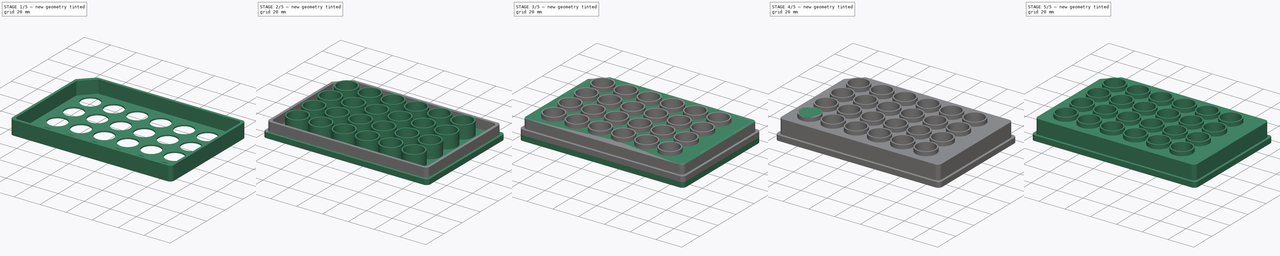
[diagram: build sequence overview — one tinted view per stage of 5, left to right]
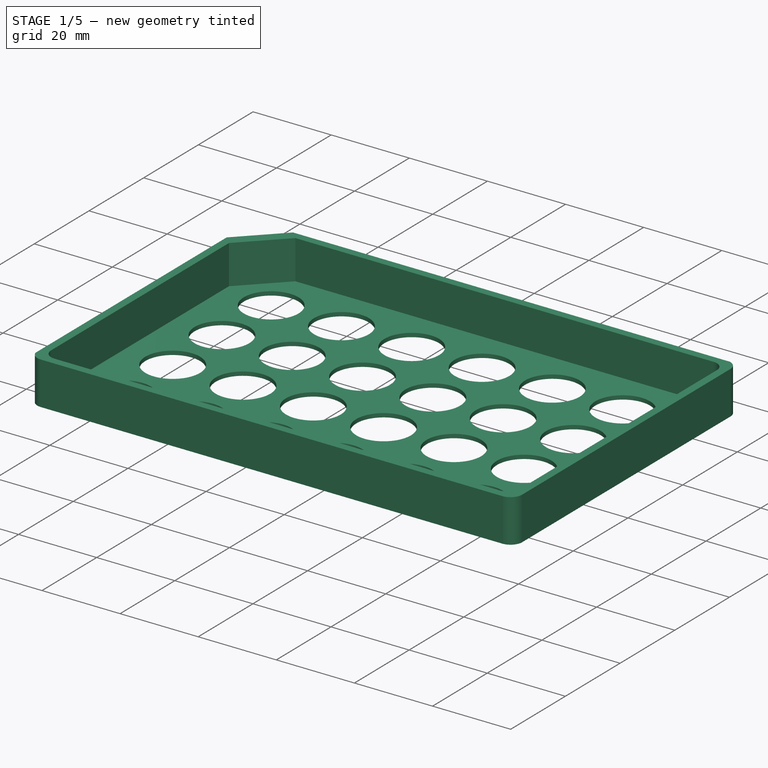
[diagram: stage 1 of 5 — iso view after this stage's code; geometry added in this stage tinted green]
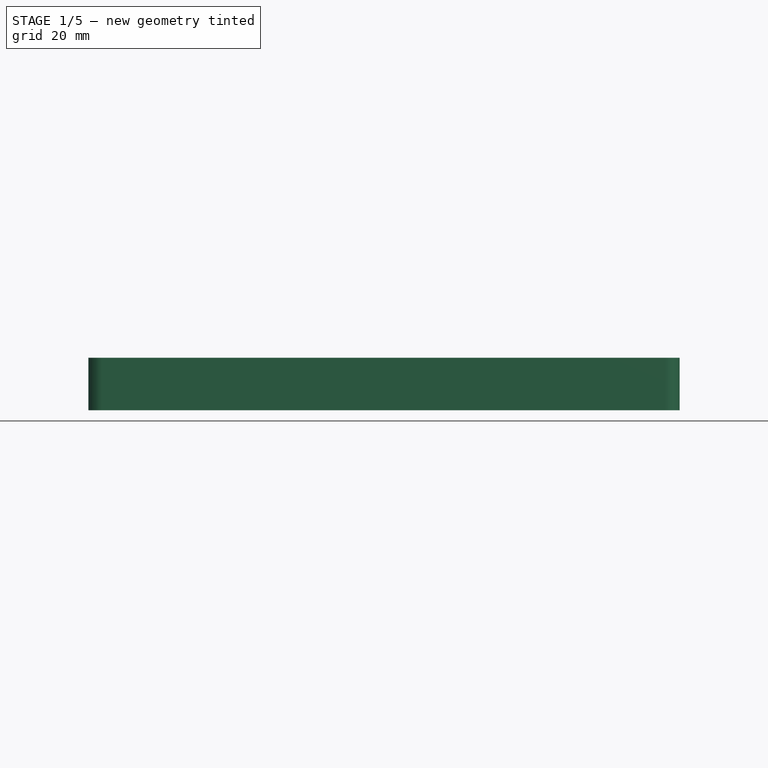
[diagram: stage 1 of 5 — front view after this stage's code; geometry added in this stage tinted green]
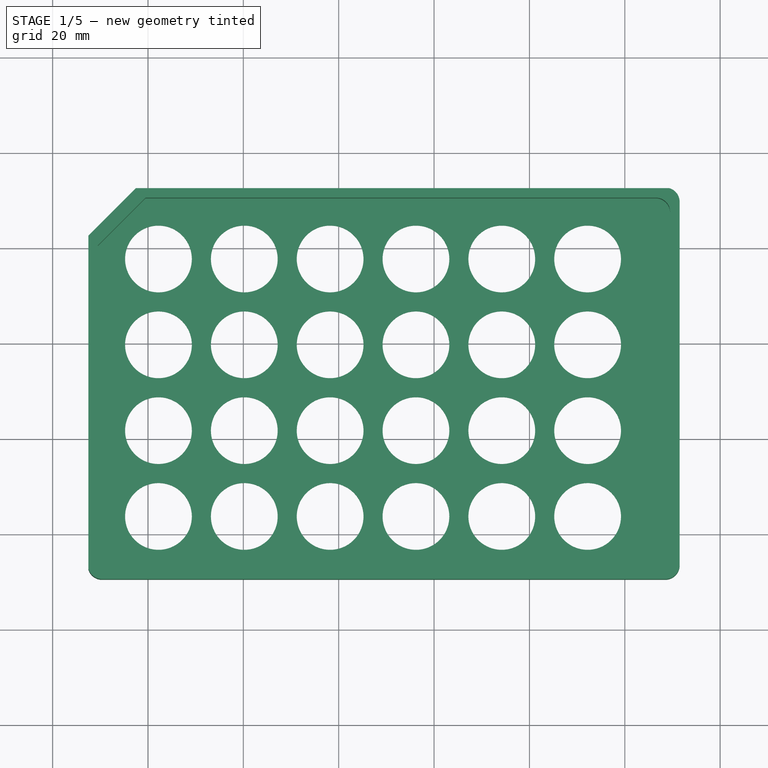
[diagram: stage 1 of 5 — top view after this stage's code; geometry added in this stage tinted green]
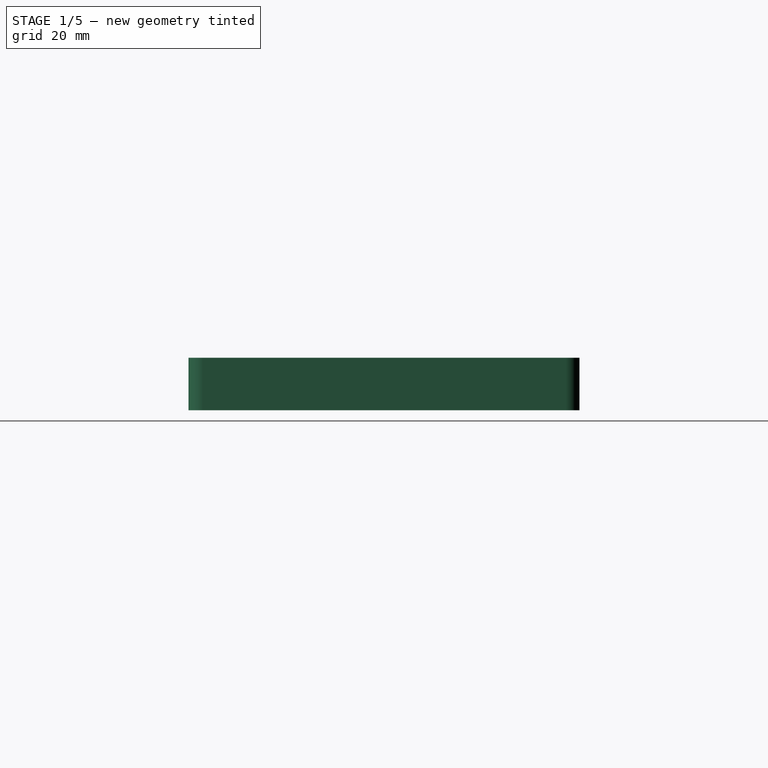
[diagram: stage 1 of 5 — right view after this stage's code; geometry added in this stage tinted green]
FCSTD DOCUMENT  (FreeCAD 0.20R29410 (Git))
Label: 24 well plate
License: All rights reserved
LicenseURL: http://en.wikipedia.org/wiki/All_rights_reserved
objects: Sketcher::SketchObject×7, PartDesign::Pad×7, PartDesign::Body×7, Part::Cylinder×7, Part::FeaturePython×7, Part::Cut×6, TechDraw::DrawViewPart×4, Part::Compound×3, TechDraw::DrawSVGTemplate×2, TechDraw::DrawPage×2
note: 44 computed .brp shape members not serialized (recipe doc carries the construction recipe); baked Part::Feature solids carry a one-line shape summary decoded from their .brp

FEATURE [Sketcher::SketchObject] Sketch021
  AttachmentOffset = pos=(0,0,4) rot=(0,0,1;0rad)
  FullyConstrained = false
  MapMode = 5
  Placement = pos=(0,0,4) rot=(0,0,1;0rad)
  Support = -> [XY_Plane015]
  sketch-geometry (25):
    g0: LineSegment StartX=0 StartY=0 StartZ=0 EndX=0 EndY=-7.5 EndZ=0
    g1: LineSegment StartX=0 StartY=0 StartZ=0 EndX=-10.5 EndY=0 EndZ=0
    g2: LineSegment StartX=0 StartY=-7.5 StartZ=0 EndX=-10.5 EndY=-7.5 EndZ=0
    g3: LineSegment StartX=-10.5 StartY=-7.5 StartZ=0 EndX=-10.5 EndY=0 EndZ=0
    g4: LineSegment StartX=-10.5 StartY=0 StartZ=0 EndX=-10.5 EndY=70.5 EndZ=0
    g5: LineSegment StartX=-10.5 StartY=70.5 StartZ=0 EndX=109.5 EndY=70.5 EndZ=0
    g6: LineSegment StartX=109.5 StartY=70.5 StartZ=0 EndX=109.5 EndY=-7.5 EndZ=0
    g7: LineSegment StartX=109.5 StartY=-7.5 StartZ=0 EndX=0 EndY=-7.5 EndZ=0
    g8: LineSegment StartX=0 StartY=0 StartZ=0 EndX=0 EndY=63 EndZ=0
    g9: LineSegment StartX=0 StartY=63 StartZ=0 EndX=99 EndY=63 EndZ=0
    g10: LineSegment StartX=99 StartY=63 StartZ=0 EndX=109.5 EndY=63 EndZ=0
    g11: LineSegment StartX=99 StartY=63 StartZ=0 EndX=99 EndY=70.5 EndZ=0
    g12: LineSegment StartX=-10.5 StartY=60.5 StartZ=0 EndX=-0.5 EndY=70.5 EndZ=0
    g13: LineSegment StartX=109.5 StartY=67.5 StartZ=0 EndX=109.5 EndY=-4.5 EndZ=0
    g14: LineSegment StartX=106.5 StartY=-7.5 StartZ=0 EndX=-7.5 EndY=-7.5 EndZ=0
    g15: ArcOfCircle CenterX=106.5 CenterY=67.5 CenterZ=0 NormalX=0 NormalY=0 NormalZ=1 AngleXU=0 Radius=3 StartAngle=-1.8e-15 EndAngle=1.5708
    g16: GeomPoint X=109.5 Y=70.5 Z=0
    g17: ArcOfCircle CenterX=106.5 CenterY=-4.5 CenterZ=0 NormalX=0 NormalY=0 NormalZ=1 AngleXU=0 Radius=3 StartAngle=4.71239 EndAngle=6.28319
    g18: GeomPoint X=109.5 Y=-7.5 Z=0
    g19: ArcOfCircle CenterX=-7.5 CenterY=-4.5 CenterZ=0 NormalX=0 NormalY=0 NormalZ=1 AngleXU=0 Radius=3 StartAngle=3.14159 EndAngle=4.71239
    g20: GeomPoint X=-10.5 Y=-7.5 Z=0
    g21: GeomPoint X=-10.5 Y=70.5 Z=0
    g22: LineSegment StartX=-0.5 StartY=70.5 StartZ=0 EndX=-10.5 EndY=60.5 EndZ=0
    g23: LineSegment StartX=-0.5 StartY=70.5 StartZ=0 EndX=106.5 EndY=70.5 EndZ=0
    g24: LineSegment StartX=-10.5 StartY=-4.5 StartZ=0 EndX=-10.5 EndY=60.5 EndZ=0
  constraints (61):
    c: Coincident(g0,g-1)
    c: PointOnObject(g0,g-2)
    c: Coincident(g1,g0)
    c: PointOnObject(g1,g-1)
    c: DistanceX(g1,g1) = 10.5
    c: DistanceY(g0,g0) = 7.5
    c: Coincident(g2,g0)
    c: Horizontal(g2)
    c: Coincident(g3,g2)
    c: Coincident(g3,g1)
    c: Vertical(g3)
    c: Coincident(g4,g1)
    c: Vertical(g4)
    c: Coincident(g5,g4)
    c: Horizontal(g5)
    c: Coincident(g6,g5)
    c: Vertical(g6)
    c: Coincident(g7,g6)
    c: Coincident(g7,g0)
    c: Horizontal(g7)
    c: Coincident(g8,g0)
    c: PointOnObject(g8,g-2)
    c: DistanceY(g8,g8) = 63
    c: Coincident(g9,g8)
    c: Horizontal(g9)
    c: DistanceX(g9,g9) = 99
    c: Coincident(g10,g9)
    c: PointOnObject(g10,g6)
    c: Horizontal(g10)
    c: Coincident(g11,g9)
    c: PointOnObject(g11,g5)
    c: Vertical(g11)
    c: Equal(g11,g0)
    c: Equal(g10,g1)
    c: PointOnObject(g12,g4)
    c: PointOnObject(g12,g5)
    c: Angle(g12,g5) = 2.35619
    c: DistanceX(g4,g12) = 10
    c: Coincident(g16,g5)
    c: Coincident(g18,g6)
    c: Coincident(g20,g2)
    c: PointOnObject(g16,g13)
    c: Tangent(g13,g15) = 1.5708
    c: PointOnObject(g18,g13)
    c: PointOnObject(g18,g14)
    c: Tangent(g13,g17) = 1.5708
    c: Tangent(g14,g17) = 1.5708
    c: PointOnObject(g20,g14)
    c: Tangent(g14,g19) = 1.5708
    c: Equal(g15,g17)
    c: Equal(g17,g19)
    c: Radius(g15) = 3
    c: Coincident(g21,g4)
    c: Coincident(g22,g12)
    c: Coincident(g22,g12)
    c: Coincident(g23,g22)
    c: Coincident(g23,g15)
    c: Horizontal(g23)
    c: Coincident(g24,g19)
    c: Coincident(g24,g22)
    c: Vertical(g24)
FEATURE [PartDesign::Pad] Pad004
  Direction = (0,0,1)
  Length = 11
  Length2 = 10
  Profile = -> Sketch021
  ReferenceAxis = -> Sketch021 [N_Axis]
  Type = 0
FEATURE [Part::Cylinder] Cylinder007  label="Well006"
  Angle = 360
  AttacherType = Attacher::AttachEngine3D
  FirstAngle = 0
  Height = 14
  Placement = pos=(2.2,3.8,0) rot=(0,0,1;0rad)
  Radius = 7
  SecondAngle = 0
FEATURE [Part::FeaturePython] Array006  label="Array of wells006"  # Draft array (typed FeaturePython)
  AlwaysSyncPlacement = false
  Angle = 360
  ArrayType = 0
  Axis = (0,0,1)
  Base = -> Cylinder007
  Center = (0,0,0)
  Count = 24
  ExpandArray = false
  Fuse = false
  IntervalAxis = (0,0,0)
  IntervalX = (18,0,0)
  IntervalY = (0,18,0)
  IntervalZ = (0,0,100)
  NumberCircles = 3
  NumberPolar = 5
  NumberX = 6
  NumberY = 4
  NumberZ = 1
  PlacementList = <same value as first occurrence — deduplicated (x7 in doc)>
  RadialDistance = 50
  ScaleList = (24) [(1,1,1),(1,1,1),(1,1,1),(1,1,1),(1,1,1),(1,1,1),(1,1,1),(1,1,1),(1,1,1),(1,1,1),(1,1,1),(1,1,1),(1,1,1),(1,1,1),(1,1,1),(1,1,1),(1,1,1),(1,1,1),+6 more]
  Symmetry = 1
  TangentialDistance = 25
FEATURE [PartDesign::Body] Body016  label="Plate base down002"
  Group = -> [Sketch022,Pad005]
  Origin = -> Origin016
  Placement = pos=(0,0,-4) rot=(0,0,1;0rad)
  Tip = -> Pad005
FEATURE [Sketcher::SketchObject] Sketch023
  AttachmentOffset = pos=(0,0,4) rot=(0,0,1;0rad)
  FullyConstrained = false
  MapMode = 5
  Placement = pos=(0,0,4) rot=(0,0,1;0rad)
  Support = -> [XY_Plane017]
  sketch-geometry (25):
    g0: LineSegment StartX=0 StartY=0 StartZ=0 EndX=0 EndY=-9.5 EndZ=0
    g1: LineSegment StartX=0 StartY=0 StartZ=0 EndX=-12.5 EndY=0 EndZ=0
    g2: LineSegment StartX=0 StartY=-9.5 StartZ=0 EndX=-12.5 EndY=-9.5 EndZ=0
    g3: LineSegment StartX=-12.5 StartY=-9.5 StartZ=0 EndX=-12.5 EndY=0 EndZ=0
    g4: LineSegment StartX=-12.5 StartY=0 StartZ=0 EndX=-12.5 EndY=72.5 EndZ=0
    g5: LineSegment StartX=-12.5 StartY=72.5 StartZ=0 EndX=111.5 EndY=72.5 EndZ=0
    g6: LineSegment StartX=111.5 StartY=72.5 StartZ=0 EndX=111.5 EndY=-9.5 EndZ=0
    g7: LineSegment StartX=111.5 StartY=-9.5 StartZ=0 EndX=0 EndY=-9.5 EndZ=0
    g8: LineSegment StartX=0 StartY=0 StartZ=0 EndX=0 EndY=63 EndZ=0
    g9: LineSegment StartX=0 StartY=63 StartZ=0 EndX=99 EndY=63 EndZ=0
    g10: LineSegment StartX=99 StartY=63 StartZ=0 EndX=111.5 EndY=63 EndZ=0
    g11: LineSegment StartX=99 StartY=63 StartZ=0 EndX=99 EndY=72.5 EndZ=0
    g12: LineSegment StartX=-12.5 StartY=62.5 StartZ=0 EndX=-2.5 EndY=72.5 EndZ=0
    g13: LineSegment StartX=111.5 StartY=69.6097 StartZ=0 EndX=111.5 EndY=-6.5 EndZ=0
    g14: LineSegment StartX=108.5 StartY=-9.5 StartZ=0 EndX=-9.62701 EndY=-9.5 EndZ=0
    g15: ArcOfCircle CenterX=108.5 CenterY=69.6097 CenterZ=0 NormalX=0 NormalY=0 NormalZ=1 AngleXU=0 Radius=3 StartAngle=2.1e-15 EndAngle=1.2996
    g16: GeomPoint X=111.5 Y=72.5 Z=0
    g17: ArcOfCircle CenterX=108.5 CenterY=-6.5 CenterZ=0 NormalX=0 NormalY=0 NormalZ=1 AngleXU=0 Radius=3 StartAngle=4.71239 EndAngle=6.28319
    g18: GeomPoint X=111.5 Y=-9.5 Z=0
    g19: ArcOfCircle CenterX=-9.62701 CenterY=-6.5 CenterZ=0 NormalX=0 NormalY=0 NormalZ=1 AngleXU=0 Radius=3 StartAngle=3.43362 EndAngle=4.71239
    g20: GeomPoint X=-12.5 Y=-9.5 Z=0
    g21: GeomPoint X=-12.5 Y=72.5 Z=0
    g22: LineSegment StartX=-2.5 StartY=72.5 StartZ=0 EndX=-12.5 EndY=62.5 EndZ=0
    g23: LineSegment StartX=-2.5 StartY=72.5 StartZ=0 EndX=109.304 EndY=72.5 EndZ=0
    g24: LineSegment StartX=-12.5 StartY=-7.36368 StartZ=0 EndX=-12.5 EndY=62.5 EndZ=0
  constraints (61):
    c: Coincident(g0,g-1)
    c: PointOnObject(g0,g-2)
    c: Coincident(g1,g0)
    c: PointOnObject(g1,g-1)
    c: DistanceX(g1,g1) = 12.5
    c: DistanceY(g0,g0) = 9.5
    c: Coincident(g2,g0)
    c: Horizontal(g2)
    c: Coincident(g3,g2)
    c: Coincident(g3,g1)
    c: Vertical(g3)
    c: Coincident(g4,g1)
    c: Vertical(g4)
    c: Coincident(g5,g4)
    c: Horizontal(g5)
    c: Coincident(g6,g5)
    c: Vertical(g6)
    c: Coincident(g7,g6)
    c: Coincident(g7,g0)
    c: Horizontal(g7)
    c: Coincident(g8,g0)
    c: PointOnObject(g8,g-2)
    c: DistanceY(g8,g8) = 63
    c: Coincident(g9,g8)
    c: Horizontal(g9)
    c: DistanceX(g9,g9) = 99
    c: Coincident(g10,g9)
    c: PointOnObject(g10,g6)
    c: Horizontal(g10)
    c: Coincident(g11,g9)
    c: PointOnObject(g11,g5)
    c: Vertical(g11)
    c: Equal(g11,g0)
    c: Equal(g10,g1)
    c: PointOnObject(g12,g4)
    c: PointOnObject(g12,g5)
    c: Angle(g12,g5) = 2.35619
    c: DistanceX(g4,g12) = 10
    c: Coincident(g16,g5)
    c: Coincident(g18,g6)
    c: Coincident(g20,g2)
    c: PointOnObject(g16,g13)
    c: Tangent(g13,g15) = 1.5708
    c: PointOnObject(g18,g13)
    c: PointOnObject(g18,g14)
    c: Tangent(g13,g17) = 1.5708
    c: Tangent(g14,g17) = 1.5708
    c: PointOnObject(g20,g14)
    c: Tangent(g14,g19) = 1.5708
    c: Equal(g15,g17)
    c: Equal(g17,g19)
    c: Radius(g15) = 3
    c: Coincident(g21,g4)
    c: Coincident(g22,g12)
    c: Coincident(g22,g12)
    c: Coincident(g23,g22)
    c: Coincident(g23,g15)
    c: Horizontal(g23)
    c: Coincident(g24,g19)
    c: Coincident(g24,g22)
    c: Vertical(g24)
FEATURE [PartDesign::Pad] Pad006
  Direction = (0,0,1)
  Length = 11
  Length2 = 10
  Profile = -> Sketch023
  ReferenceAxis = -> Sketch023 [N_Axis]
  Type = 0
FEATURE [PartDesign::Body] Body017  label="Plate base middle002"
  Group = -> [Sketch023,Pad006]
  Origin = -> Origin017
  Placement = pos=(0,0,-4) rot=(0,0,1;0rad)
  Tip = -> Pad006
FEATURE [Part::Cut] Cut004
  Base = -> Body017
  Tool = -> Array006
FEATURE [Part::Cut] Cut005
  Base = -> Cut004
  Tool = -> Body015
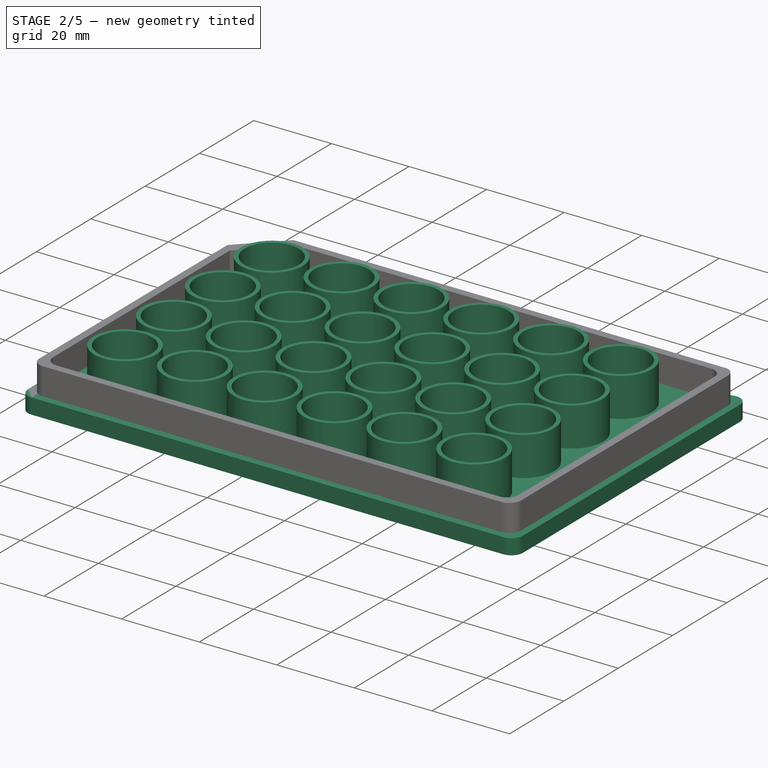
[diagram: stage 2 of 5 — iso view after this stage's code; geometry added in this stage tinted green]
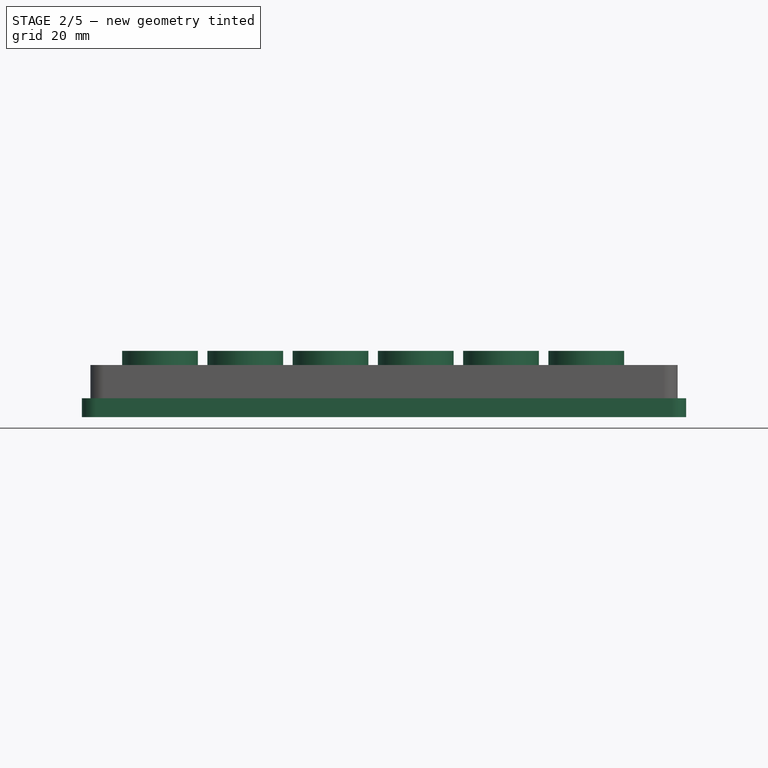
[diagram: stage 2 of 5 — front view after this stage's code; geometry added in this stage tinted green]
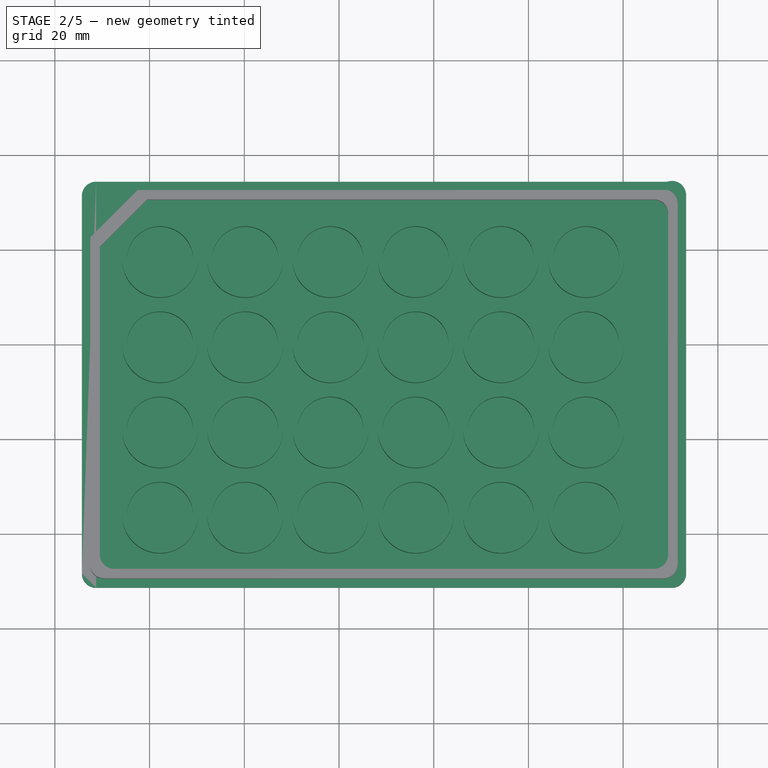
[diagram: stage 2 of 5 — top view after this stage's code; geometry added in this stage tinted green]
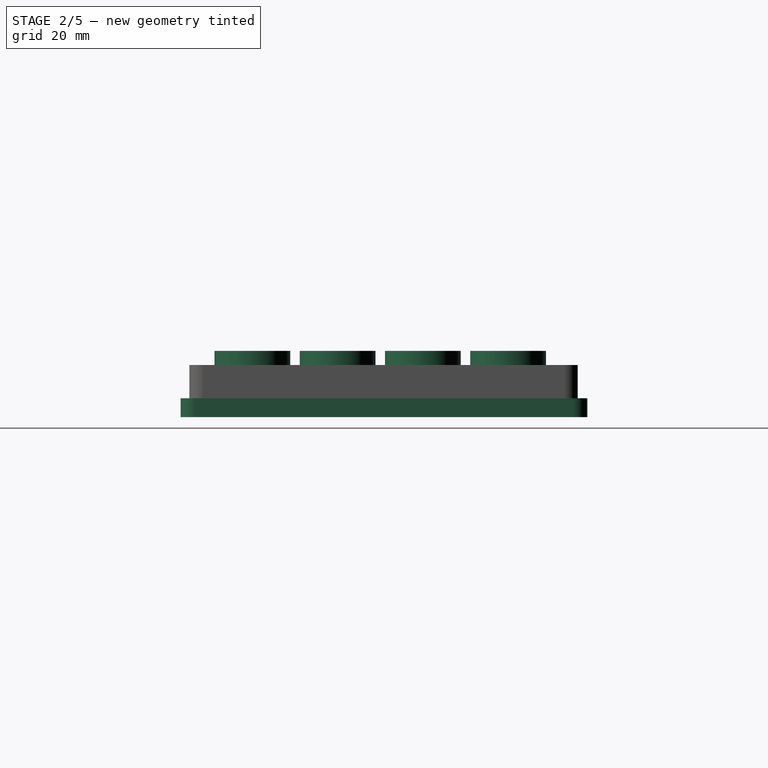
[diagram: stage 2 of 5 — right view after this stage's code; geometry added in this stage tinted green]
FEATURE [PartDesign::Body] Body015  label="Plate middle recess"
  Group = -> [Sketch021,Pad004]
  Origin = -> Origin015
  Placement = pos=(0,0,-3) rot=(0,0,1;0rad)
  Tip = -> Pad004
FEATURE [Part::Cylinder] Cylinder005  label="Well004"
  Angle = 360
  AttacherType = Attacher::AttachEngine3D
  FirstAngle = 0
  Height = 14
  Placement = pos=(2.2,3.8,0) rot=(0,0,1;0rad)
  Radius = 7
  SecondAngle = 0
FEATURE [Part::FeaturePython] Array004  label="Array of wells004"  # Draft array (typed FeaturePython)
  AlwaysSyncPlacement = false
  Angle = 360
  ArrayType = 0
  Axis = (0,0,1)
  Base = -> Cylinder005
  Center = (0,0,0)
  Count = 24
  ExpandArray = false
  Fuse = false
  IntervalAxis = (0,0,0)
  IntervalX = (18,0,0)
  IntervalY = (0,18,0)
  IntervalZ = (0,0,100)
  NumberCircles = 3
  NumberPolar = 5
  NumberX = 6
  NumberY = 4
  NumberZ = 1
  PlacementList = <same value as first occurrence — deduplicated (x7 in doc)>
  RadialDistance = 50
  ScaleList = (24) [(1,1,1),(1,1,1),(1,1,1),(1,1,1),(1,1,1),(1,1,1),(1,1,1),(1,1,1),(1,1,1),(1,1,1),(1,1,1),(1,1,1),(1,1,1),(1,1,1),(1,1,1),(1,1,1),(1,1,1),(1,1,1),+6 more]
  Symmetry = 1
  TangentialDistance = 25
FEATURE [Part::Cylinder] Cylinder006  label="Well005"
  Angle = 360
  AttacherType = Attacher::AttachEngine3D
  FirstAngle = 0
  Height = 14
  Placement = pos=(2.2,3.8,0) rot=(0,0,1;0rad)
  Radius = 8
  SecondAngle = 0
FEATURE [Part::FeaturePython] Array005  label="Array of wells005"  # Draft array (typed FeaturePython)
  AlwaysSyncPlacement = false
  Angle = 360
  ArrayType = 0
  Axis = (0,0,1)
  Base = -> Cylinder006
  Center = (0,0,0)
  Count = 24
  ExpandArray = false
  Fuse = false
  IntervalAxis = (0,0,0)
  IntervalX = (18,0,0)
  IntervalY = (0,18,0)
  IntervalZ = (0,0,100)
  NumberCircles = 3
  NumberPolar = 5
  NumberX = 6
  NumberY = 4
  NumberZ = 1
  PlacementList = <same value as first occurrence — deduplicated (x7 in doc)>
  RadialDistance = 50
  ScaleList = (24) [(1,1,1),(1,1,1),(1,1,1),(1,1,1),(1,1,1),(1,1,1),(1,1,1),(1,1,1),(1,1,1),(1,1,1),(1,1,1),(1,1,1),(1,1,1),(1,1,1),(1,1,1),(1,1,1),(1,1,1),(1,1,1),+6 more]
  Symmetry = 1
  TangentialDistance = 25
FEATURE [Part::Cut] Cut003
  Base = -> Array005
  Tool = -> Array004
FEATURE [Sketcher::SketchObject] Sketch022
  FullyConstrained = false
  MapMode = 5
  Support = -> [XY_Plane016]
  sketch-geometry (25):
    g0: LineSegment StartX=0 StartY=0 StartZ=0 EndX=0 EndY=-11.36 EndZ=0
    g1: LineSegment StartX=0 StartY=0 StartZ=0 EndX=-14.3 EndY=0 EndZ=0
    g2: LineSegment StartX=0 StartY=-11.36 StartZ=0 EndX=-14.3 EndY=-11.36 EndZ=0
    g3: LineSegment StartX=-14.3 StartY=-11.36 StartZ=0 EndX=-14.3 EndY=0 EndZ=0
    g4: LineSegment StartX=-14.3 StartY=0 StartZ=0 EndX=-14.3 EndY=74.36 EndZ=0
    g5: LineSegment StartX=-14.3 StartY=74.36 StartZ=0 EndX=113.3 EndY=74.36 EndZ=0
    g6: LineSegment StartX=113.3 StartY=74.36 StartZ=0 EndX=113.3 EndY=-11.36 EndZ=0
    g7: LineSegment StartX=113.3 StartY=-11.36 StartZ=0 EndX=0 EndY=-11.36 EndZ=0
    g8: LineSegment StartX=0 StartY=0 StartZ=0 EndX=0 EndY=63 EndZ=0
    g9: LineSegment StartX=0 StartY=63 StartZ=0 EndX=99 EndY=63 EndZ=0
    g10: LineSegment StartX=99 StartY=63 StartZ=0 EndX=113.3 EndY=63 EndZ=0
    g11: LineSegment StartX=99 StartY=63 StartZ=0 EndX=99 EndY=74.36 EndZ=0
    g12: LineSegment StartX=-14.3 StartY=64.36 StartZ=0 EndX=-4.3 EndY=74.36 EndZ=0
    g13: LineSegment StartX=113.3 StartY=71.5303 StartZ=0 EndX=113.3 EndY=-8.36 EndZ=0
    g14: LineSegment StartX=110.3 StartY=-11.36 StartZ=0 EndX=-11.3 EndY=-11.36 EndZ=0
    g15: ArcOfCircle CenterX=110.3 CenterY=71.5303 CenterZ=0 NormalX=0 NormalY=0 NormalZ=1 AngleXU=0 Radius=3 StartAngle=-1.8e-15 EndAngle=1.90934
    g16: GeomPoint X=113.3 Y=74.36 Z=0
    g17: ArcOfCircle CenterX=110.3 CenterY=-8.36 CenterZ=0 NormalX=0 NormalY=0 NormalZ=1 AngleXU=0 Radius=3 StartAngle=4.71239 EndAngle=6.28319
    g18: GeomPoint X=113.3 Y=-11.36 Z=0
    g19: ArcOfCircle CenterX=-11.3 CenterY=-8.36 CenterZ=0 NormalX=0 NormalY=0 NormalZ=1 AngleXU=0 Radius=3 StartAngle=3.14159 EndAngle=4.71239
    g20: GeomPoint X=-14.3 Y=-11.36 Z=0
    g21: LineSegment StartX=109.304 StartY=74.36 StartZ=0 EndX=-11.3 EndY=74.36 EndZ=0
    g22: LineSegment StartX=-14.3 StartY=71.36 StartZ=0 EndX=-14.3 EndY=-8.36 EndZ=0
    g23: ArcOfCircle CenterX=-11.3 CenterY=71.36 CenterZ=0 NormalX=0 NormalY=0 NormalZ=1 AngleXU=0 Radius=3 StartAngle=1.5708 EndAngle=3.14159
    g24: GeomPoint X=-14.3 Y=74.36 Z=0
  constraints (62):
    c: Coincident(g0,g-1)
    c: PointOnObject(g0,g-2)
    c: Coincident(g1,g0)
    c: PointOnObject(g1,g-1)
    c: DistanceX(g1,g1) = 14.3
    c: DistanceY(g0,g0) = 11.36
    c: Coincident(g2,g0)
    c: Horizontal(g2)
    c: Coincident(g3,g2)
    c: Coincident(g3,g1)
    c: Vertical(g3)
    c: Coincident(g4,g1)
    c: Vertical(g4)
    c: Coincident(g5,g4)
    c: Horizontal(g5)
    c: Coincident(g6,g5)
    c: Vertical(g6)
    c: Coincident(g7,g6)
    c: Coincident(g7,g0)
    c: Horizontal(g7)
    c: Coincident(g8,g0)
    c: PointOnObject(g8,g-2)
    c: DistanceY(g8,g8) = 63
    c: Coincident(g9,g8)
    c: Horizontal(g9)
    c: DistanceX(g9,g9) = 99
    c: Coincident(g10,g9)
    c: PointOnObject(g10,g6)
    c: Horizontal(g10)
    c: Coincident(g11,g9)
    c: PointOnObject(g11,g5)
    c: Vertical(g11)
    c: Equal(g11,g0)
    c: Equal(g10,g1)
    c: PointOnObject(g12,g4)
    c: PointOnObject(g12,g5)
    c: Angle(g12,g5) = 2.35619
    c: DistanceX(g4,g12) = 10
    c: Coincident(g16,g5)
    c: Coincident(g18,g6)
    c: Coincident(g20,g2)
    c: PointOnObject(g16,g13)
    c: Tangent(g13,g15) = 1.5708
    c: PointOnObject(g18,g13)
    c: PointOnObject(g18,g14)
    c: Tangent(g13,g17) = 1.5708
    c: Tangent(g14,g17) = 1.5708
    c: PointOnObject(g20,g14)
    c: Tangent(g14,g19) = 1.5708
    c: Equal(g15,g17)
    c: Equal(g17,g19)
    c: Radius(g15) = 3
    c: Coincident(g21,g15)
    c: Coincident(g24,g4)
    c: Horizontal(g21)
    c: Vertical(g22)
    c: PointOnObject(g24,g22)
    c: PointOnObject(g24,g21)
    c: Tangent(g22,g23) = -1.5708
    c: Tangent(g21,g23) = -1.5708
    c: Equal(g23,g15)
    c: Tangent(g22,g19) = -1.5708
FEATURE [PartDesign::Pad] Pad005
  Direction = (0,0,1)
  Length = 4
  Length2 = 10
  Profile = -> Sketch022
  ReferenceAxis = -> Sketch022 [N_Axis]
  Type = 0
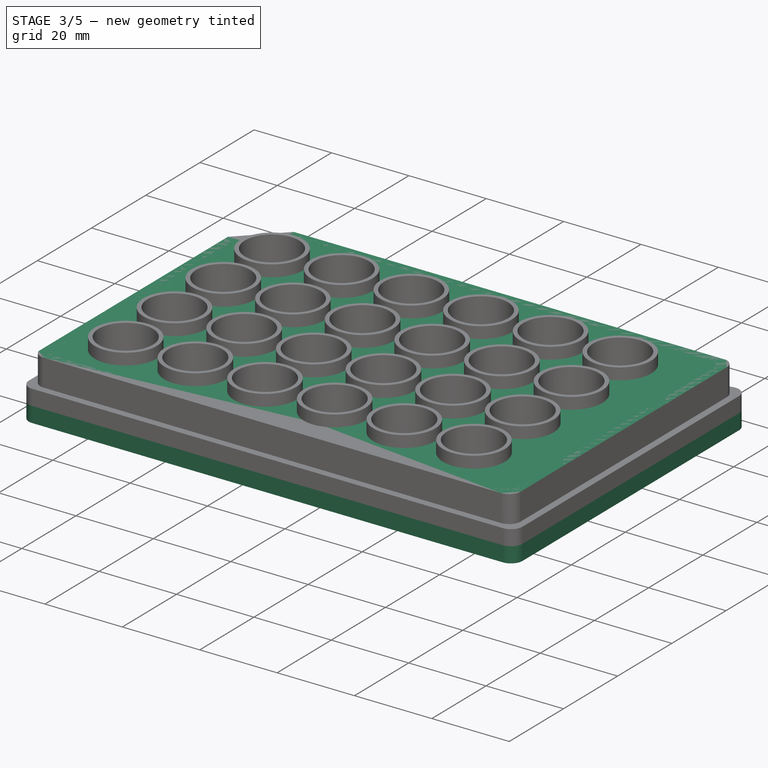
[diagram: stage 3 of 5 — iso view after this stage's code; geometry added in this stage tinted green]
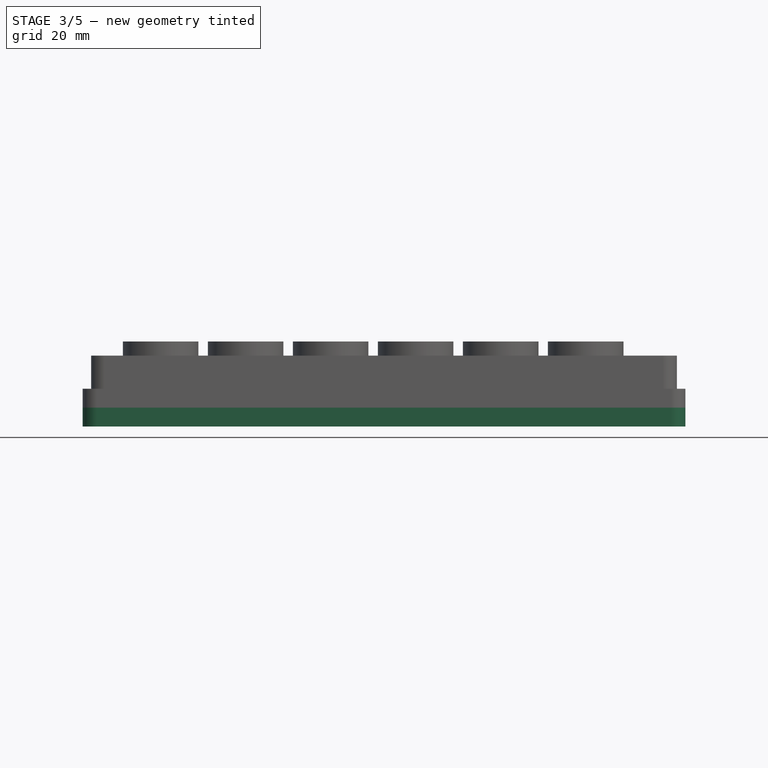
[diagram: stage 3 of 5 — front view after this stage's code; geometry added in this stage tinted green]
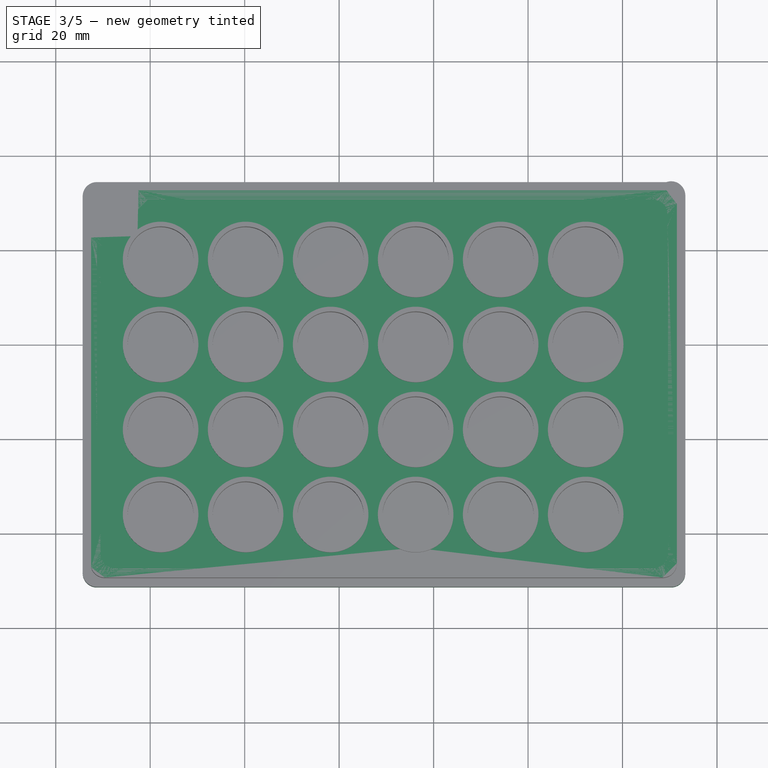
[diagram: stage 3 of 5 — top view after this stage's code; geometry added in this stage tinted green]
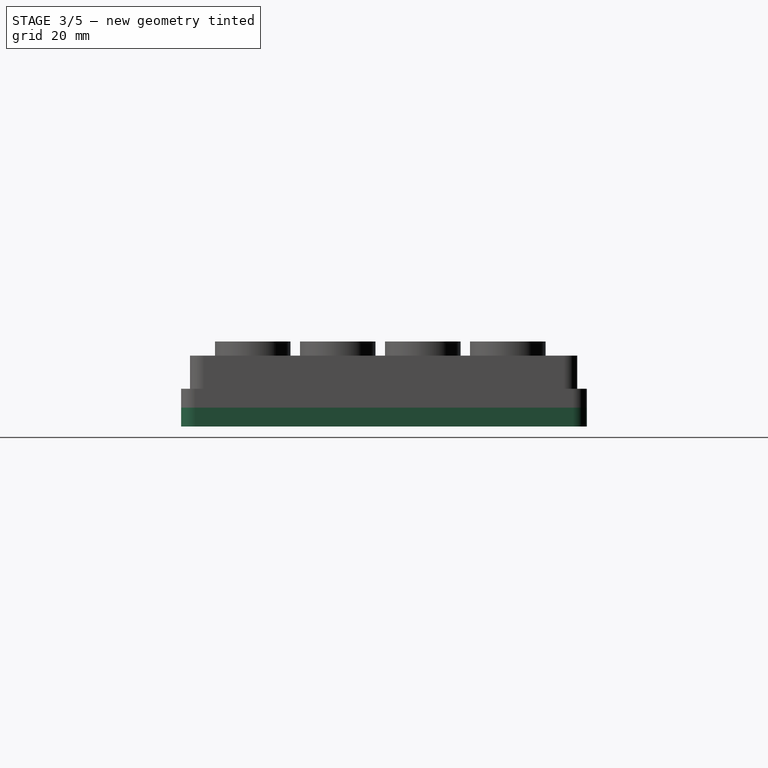
[diagram: stage 3 of 5 — right view after this stage's code; geometry added in this stage tinted green]
FEATURE [Sketcher::SketchObject] Sketch
  FullyConstrained = false
  MapMode = 5
  Support = -> [XY_Plane]
  sketch-geometry (25):
    g0: LineSegment StartX=0 StartY=0 StartZ=0 EndX=0 EndY=-11.36 EndZ=0
    g1: LineSegment StartX=0 StartY=0 StartZ=0 EndX=-14.3 EndY=0 EndZ=0
    g2: LineSegment StartX=0 StartY=-11.36 StartZ=0 EndX=-14.3 EndY=-11.36 EndZ=0
    g3: LineSegment StartX=-14.3 StartY=-11.36 StartZ=0 EndX=-14.3 EndY=0 EndZ=0
    g4: LineSegment StartX=-14.3 StartY=0 StartZ=0 EndX=-14.3 EndY=74.36 EndZ=0
    g5: LineSegment StartX=-14.3 StartY=74.36 StartZ=0 EndX=113.3 EndY=74.36 EndZ=0
    g6: LineSegment StartX=113.3 StartY=74.36 StartZ=0 EndX=113.3 EndY=-11.36 EndZ=0
    g7: LineSegment StartX=113.3 StartY=-11.36 StartZ=0 EndX=0 EndY=-11.36 EndZ=0
    g8: LineSegment StartX=0 StartY=0 StartZ=0 EndX=0 EndY=63 EndZ=0
    g9: LineSegment StartX=0 StartY=63 StartZ=0 EndX=99 EndY=63 EndZ=0
    g10: LineSegment StartX=99 StartY=63 StartZ=0 EndX=113.3 EndY=63 EndZ=0
    g11: LineSegment StartX=99 StartY=63 StartZ=0 EndX=99 EndY=74.36 EndZ=0
    g12: LineSegment StartX=-14.3 StartY=64.36 StartZ=0 EndX=-4.3 EndY=74.36 EndZ=0
    g13: LineSegment StartX=113.3 StartY=71.5303 StartZ=0 EndX=113.3 EndY=-8.36 EndZ=0
    g14: LineSegment StartX=110.3 StartY=-11.36 StartZ=0 EndX=-11.3 EndY=-11.36 EndZ=0
    g15: ArcOfCircle CenterX=110.3 CenterY=71.5303 CenterZ=0 NormalX=0 NormalY=0 NormalZ=1 AngleXU=0 Radius=3 StartAngle=-1.8e-15 EndAngle=1.90934
    g16: GeomPoint X=113.3 Y=74.36 Z=0
    g17: ArcOfCircle CenterX=110.3 CenterY=-8.36 CenterZ=0 NormalX=0 NormalY=0 NormalZ=1 AngleXU=0 Radius=3 StartAngle=4.71239 EndAngle=6.28319
    g18: GeomPoint X=113.3 Y=-11.36 Z=0
    g19: ArcOfCircle CenterX=-11.3 CenterY=-8.36 CenterZ=0 NormalX=0 NormalY=0 NormalZ=1 AngleXU=0 Radius=3 StartAngle=3.14159 EndAngle=4.71239
    g20: GeomPoint X=-14.3 Y=-11.36 Z=0
    g21: LineSegment StartX=109.304 StartY=74.36 StartZ=0 EndX=-11.3 EndY=74.36 EndZ=0
    g22: LineSegment StartX=-14.3 StartY=71.36 StartZ=0 EndX=-14.3 EndY=-8.36 EndZ=0
    g23: ArcOfCircle CenterX=-11.3 CenterY=71.36 CenterZ=0 NormalX=0 NormalY=0 NormalZ=1 AngleXU=0 Radius=3 StartAngle=1.5708 EndAngle=3.14159
    g24: GeomPoint X=-14.3 Y=74.36 Z=0
  constraints (62):
    c: Coincident(g0,g-1)
    c: PointOnObject(g0,g-2)
    c: Coincident(g1,g0)
    c: PointOnObject(g1,g-1)
    c: DistanceX(g1,g1) = 14.3
    c: DistanceY(g0,g0) = 11.36
    c: Coincident(g2,g0)
    c: Horizontal(g2)
    c: Coincident(g3,g2)
    c: Coincident(g3,g1)
    c: Vertical(g3)
    c: Coincident(g4,g1)
    c: Vertical(g4)
    c: Coincident(g5,g4)
    c: Horizontal(g5)
    c: Coincident(g6,g5)
    c: Vertical(g6)
    c: Coincident(g7,g6)
    c: Coincident(g7,g0)
    c: Horizontal(g7)
    c: Coincident(g8,g0)
    c: PointOnObject(g8,g-2)
    c: DistanceY(g8,g8) = 63
    c: Coincident(g9,g8)
    c: Horizontal(g9)
    c: DistanceX(g9,g9) = 99
    c: Coincident(g10,g9)
    c: PointOnObject(g10,g6)
    c: Horizontal(g10)
    c: Coincident(g11,g9)
    c: PointOnObject(g11,g5)
    c: Vertical(g11)
    c: Equal(g11,g0)
    c: Equal(g10,g1)
    c: PointOnObject(g12,g4)
    c: PointOnObject(g12,g5)
    c: Angle(g12,g5) = 2.35619
    c: DistanceX(g4,g12) = 10
    c: Coincident(g16,g5)
    c: Coincident(g18,g6)
    c: Coincident(g20,g2)
    c: PointOnObject(g16,g13)
    c: Tangent(g13,g15) = 1.5708
    c: PointOnObject(g18,g13)
    c: PointOnObject(g18,g14)
    c: Tangent(g13,g17) = 1.5708
    c: Tangent(g14,g17) = 1.5708
    c: PointOnObject(g20,g14)
    c: Tangent(g14,g19) = 1.5708
    c: Equal(g15,g17)
    c: Equal(g17,g19)
    c: Radius(g15) = 3
    c: Coincident(g21,g15)
    c: Coincident(g24,g4)
    c: Horizontal(g21)
    c: Vertical(g22)
    c: PointOnObject(g24,g22)
    c: PointOnObject(g24,g21)
    c: Tangent(g22,g23) = -1.5708
    c: Tangent(g21,g23) = -1.5708
    c: Equal(g23,g15)
    c: Tangent(g22,g19) = -1.5708
FEATURE [PartDesign::Pad] Pad
  Direction = (0,0,1)
  Length = 4
  Length2 = 10
  Profile = -> Sketch
  ReferenceAxis = -> Sketch [N_Axis]
  Type = 0
FEATURE [PartDesign::Body] Body  label="Plate base down"
  Group = -> [Sketch,Pad]
  Origin = -> Origin
  Placement = pos=(0,0,-4) rot=(0,0,1;0rad)
  Tip = -> Pad
FEATURE [Sketcher::SketchObject] Sketch018
  AttachmentOffset = pos=(0,0,4) rot=(0,0,1;0rad)
  FullyConstrained = false
  MapMode = 5
  Placement = pos=(0,0,4) rot=(0,0,1;0rad)
  Support = -> [XY_Plane012]
  sketch-geometry (25):
    g0: LineSegment StartX=0 StartY=0 StartZ=0 EndX=0 EndY=-9.5 EndZ=0
    g1: LineSegment StartX=0 StartY=0 StartZ=0 EndX=-12.5 EndY=0 EndZ=0
    g2: LineSegment StartX=0 StartY=-9.5 StartZ=0 EndX=-12.5 EndY=-9.5 EndZ=0
    g3: LineSegment StartX=-12.5 StartY=-9.5 StartZ=0 EndX=-12.5 EndY=0 EndZ=0
    g4: LineSegment StartX=-12.5 StartY=0 StartZ=0 EndX=-12.5 EndY=72.5 EndZ=0
    g5: LineSegment StartX=-12.5 StartY=72.5 StartZ=0 EndX=111.5 EndY=72.5 EndZ=0
    g6: LineSegment StartX=111.5 StartY=72.5 StartZ=0 EndX=111.5 EndY=-9.5 EndZ=0
    g7: LineSegment StartX=111.5 StartY=-9.5 StartZ=0 EndX=0 EndY=-9.5 EndZ=0
    g8: LineSegment StartX=0 StartY=0 StartZ=0 EndX=0 EndY=63 EndZ=0
    g9: LineSegment StartX=0 StartY=63 StartZ=0 EndX=99 EndY=63 EndZ=0
    g10: LineSegment StartX=99 StartY=63 StartZ=0 EndX=111.5 EndY=63 EndZ=0
    g11: LineSegment StartX=99 StartY=63 StartZ=0 EndX=99 EndY=72.5 EndZ=0
    g12: LineSegment StartX=-12.5 StartY=62.5 StartZ=0 EndX=-2.5 EndY=72.5 EndZ=0
    g13: LineSegment StartX=111.5 StartY=69.6097 StartZ=0 EndX=111.5 EndY=-6.5 EndZ=0
    g14: LineSegment StartX=108.5 StartY=-9.5 StartZ=0 EndX=-9.62701 EndY=-9.5 EndZ=0
    g15: ArcOfCircle CenterX=108.5 CenterY=69.6097 CenterZ=0 NormalX=0 NormalY=0 NormalZ=1 AngleXU=0 Radius=3 StartAngle=2.1e-15 EndAngle=1.2996
    g16: GeomPoint X=111.5 Y=72.5 Z=0
    g17: ArcOfCircle CenterX=108.5 CenterY=-6.5 CenterZ=0 NormalX=0 NormalY=0 NormalZ=1 AngleXU=0 Radius=3 StartAngle=4.71239 EndAngle=6.28319
    g18: GeomPoint X=111.5 Y=-9.5 Z=0
    g19: ArcOfCircle CenterX=-9.62701 CenterY=-6.5 CenterZ=0 NormalX=0 NormalY=0 NormalZ=1 AngleXU=0 Radius=3 StartAngle=3.43362 EndAngle=4.71239
    g20: GeomPoint X=-12.5 Y=-9.5 Z=0
    g21: GeomPoint X=-12.5 Y=72.5 Z=0
    g22: LineSegment StartX=-2.5 StartY=72.5 StartZ=0 EndX=-12.5 EndY=62.5 EndZ=0
    g23: LineSegment StartX=-2.5 StartY=72.5 StartZ=0 EndX=109.304 EndY=72.5 EndZ=0
    g24: LineSegment StartX=-12.5 StartY=-7.36368 StartZ=0 EndX=-12.5 EndY=62.5 EndZ=0
  constraints (61):
    c: Coincident(g0,g-1)
    c: PointOnObject(g0,g-2)
    c: Coincident(g1,g0)
    c: PointOnObject(g1,g-1)
    c: DistanceX(g1,g1) = 12.5
    c: DistanceY(g0,g0) = 9.5
    c: Coincident(g2,g0)
    c: Horizontal(g2)
    c: Coincident(g3,g2)
    c: Coincident(g3,g1)
    c: Vertical(g3)
    c: Coincident(g4,g1)
    c: Vertical(g4)
    c: Coincident(g5,g4)
    c: Horizontal(g5)
    c: Coincident(g6,g5)
    c: Vertical(g6)
    c: Coincident(g7,g6)
    c: Coincident(g7,g0)
    c: Horizontal(g7)
    c: Coincident(g8,g0)
    c: PointOnObject(g8,g-2)
    c: DistanceY(g8,g8) = 63
    c: Coincident(g9,g8)
    c: Horizontal(g9)
    c: DistanceX(g9,g9) = 99
    c: Coincident(g10,g9)
    c: PointOnObject(g10,g6)
    c: Horizontal(g10)
    c: Coincident(g11,g9)
    c: PointOnObject(g11,g5)
    c: Vertical(g11)
    c: Equal(g11,g0)
    c: Equal(g10,g1)
    c: PointOnObject(g12,g4)
    c: PointOnObject(g12,g5)
    c: Angle(g12,g5) = 2.35619
    c: DistanceX(g4,g12) = 10
    c: Coincident(g16,g5)
    c: Coincident(g18,g6)
    c: Coincident(g20,g2)
    c: PointOnObject(g16,g13)
    c: Tangent(g13,g15) = 1.5708
    c: PointOnObject(g18,g13)
    c: PointOnObject(g18,g14)
    c: Tangent(g13,g17) = 1.5708
    c: Tangent(g14,g17) = 1.5708
    c: PointOnObject(g20,g14)
    c: Tangent(g14,g19) = 1.5708
    c: Equal(g15,g17)
    c: Equal(g17,g19)
    c: Radius(g15) = 3
    c: Coincident(g21,g4)
    c: Coincident(g22,g12)
    c: Coincident(g22,g12)
    c: Coincident(g23,g22)
    c: Coincident(g23,g15)
    c: Horizontal(g23)
    c: Coincident(g24,g19)
    c: Coincident(g24,g22)
    c: Vertical(g24)
FEATURE [PartDesign::Pad] Pad001
  Direction = (0,0,1)
  Length = 11
  Length2 = 10
  Profile = -> Sketch018
  ReferenceAxis = -> Sketch018 [N_Axis]
  Type = 0
FEATURE [PartDesign::Body] Body012  label="Plate base middle"
  Group = -> [Sketch018,Pad001]
  Origin = -> Origin012
  Placement = pos=(0,0,-4) rot=(0,0,1;0rad)
  Tip = -> Pad001
FEATURE [Part::Cylinder] Cylinder001  label="Well"
  Angle = 360
  AttacherType = Attacher::AttachEngine3D
  FirstAngle = 0
  Height = 14
  Placement = pos=(2.2,3.8,0) rot=(0,0,1;0rad)
  Radius = 7
  SecondAngle = 0
FEATURE [Part::FeaturePython] Array  label="Array of wells"  # Draft array (typed FeaturePython)
  AlwaysSyncPlacement = false
  Angle = 360
  ArrayType = 0
  Axis = (0,0,1)
  Base = -> Cylinder001
  Center = (0,0,0)
  Count = 24
  ExpandArray = false
  Fuse = false
  IntervalAxis = (0,0,0)
  IntervalX = (18,0,0)
  IntervalY = (0,18,0)
  IntervalZ = (0,0,100)
  NumberCircles = 3
  NumberPolar = 5
  NumberX = 6
  NumberY = 4
  NumberZ = 1
  PlacementList = 24 placements: [(2.2,3.8,0),(2.2,21.8,0),(2.2,39.8,0),(2.2,57.8,0),(20.2,3.8,0),(20.2,21.8,0),(20.2,39.8,0),(20.2,57.8,0),(38.2,3.8,0),(38.2,21.8,0),(38.2,39.8,0),(38.2,57.8,0),(56.2,3.8,0),(56.2,21.8,0),(56.2,39.8,0),(56.2,57.8,0),(74.2,3.8,0),(74.2,21.8,0),(74.2,39.8,0),(74.2,57.8,0),(92.2,3.8,0),(92.2,21.8,0),(92.2,39.8,0),(92.2,57.8,0)]
  RadialDistance = 50
  ScaleList = (24) [(1,1,1),(1,1,1),(1,1,1),(1,1,1),(1,1,1),(1,1,1),(1,1,1),(1,1,1),(1,1,1),(1,1,1),(1,1,1),(1,1,1),(1,1,1),(1,1,1),(1,1,1),(1,1,1),(1,1,1),(1,1,1),+6 more]
  Symmetry = 1
  TangentialDistance = 25
FEATURE [Part::Cut] Cut  label="Cutted"
  Base = -> Body012
  Tool = -> Array
FEATURE [Part::Compound] Compound002  label="96 well realistic"
  Links = -> [Cut003,Body016,Cut005]
FEATURE [TechDraw::DrawSVGTemplate] Template
  Height = 210
  Orientation = 1
  Width = 297
FEATURE [TechDraw::DrawViewPart] View
  CoarseView = false
  Direction = (0.577,-0.577,0.577)
  Focus = 100
  HardHidden = false
  IsoCount = 0
  IsoHidden = false
  IsoVisible = false
  LockPosition = false
  Perspective = false
  Rotation = 0
  ScaleType = 0
  SeamHidden = false
  SeamVisible = true
  SmoothHidden = false
  SmoothVisible = true
  Source = -> [Compound002]
  X = 225.096
  XDirection = (0.707,0.707,0)
  Y = 102.766
FEATURE [TechDraw::DrawViewPart] View001
  CoarseView = false
  Direction = (0.577,-0.577,0.577)
  Focus = 100
  HardHidden = false
  IsoCount = 0
  IsoHidden = false
  IsoVisible = false
  LockPosition = false
  Perspective = false
  Rotation = 0
  ScaleType = 0
  SeamHidden = false
  SeamVisible = true
  SmoothHidden = false
  SmoothVisible = true
  Source = -> [Compound001]
  X = 77.9681
  XDirection = (0.707,0.707,0)
  Y = 102.766
FEATURE [TechDraw::DrawSVGTemplate] Template001
  Height = 210
  Orientation = 1
  Width = 297
FEATURE [TechDraw::DrawViewPart] View002
  CoarseView = false
  Direction = (0.577,-0.577,0.577)
  Focus = 100
  HardHidden = false
  IsoCount = 0
  IsoHidden = false
  IsoVisible = false
  LockPosition = false
  Perspective = false
  Rotation = 0
  ScaleType = 0
  SeamHidden = false
  SeamVisible = true
  SmoothHidden = false
  SmoothVisible = true
  Source = -> [Compound002]
  X = 141.479
  XDirection = (0.707,0.707,0)
  Y = 105.957
FEATURE [TechDraw::DrawPage] Page001
  KeepUpdated = true
  NextBalloonIndex = 1
  ProjectionType = 0
  Template = -> Template001
  Views = -> [View002]
FEATURE [TechDraw::DrawViewPart] View003
  CoarseView = false
  Direction = (0,0,1)
  Focus = 100
  HardHidden = false
  IsoCount = 0
  IsoHidden = false
  IsoVisible = false
  LockPosition = false
  Perspective = false
  Rotation = 0
  ScaleType = 0
  SeamHidden = false
  SeamVisible = true
  SmoothHidden = false
  SmoothVisible = true
  Source = -> [Compound002]
  X = 148.5
  XDirection = (1,0,0)
  Y = 105
FEATURE [TechDraw::DrawPage] Page
  KeepUpdated = true
  NextBalloonIndex = 1
  ProjectionType = 0
  Template = -> Template
  Views = -> [View,View001,View003]
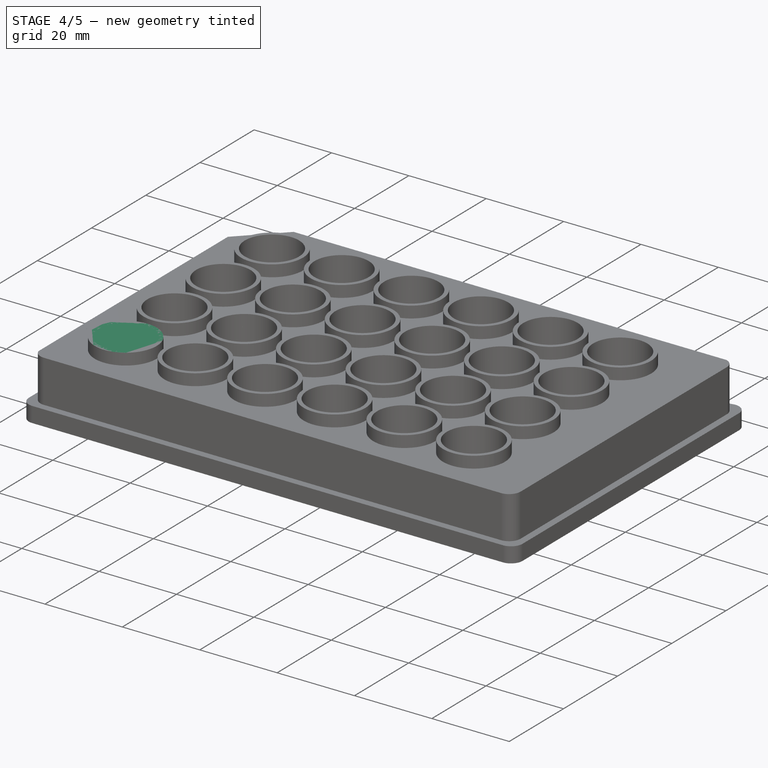
[diagram: stage 4 of 5 — iso view after this stage's code; geometry added in this stage tinted green]
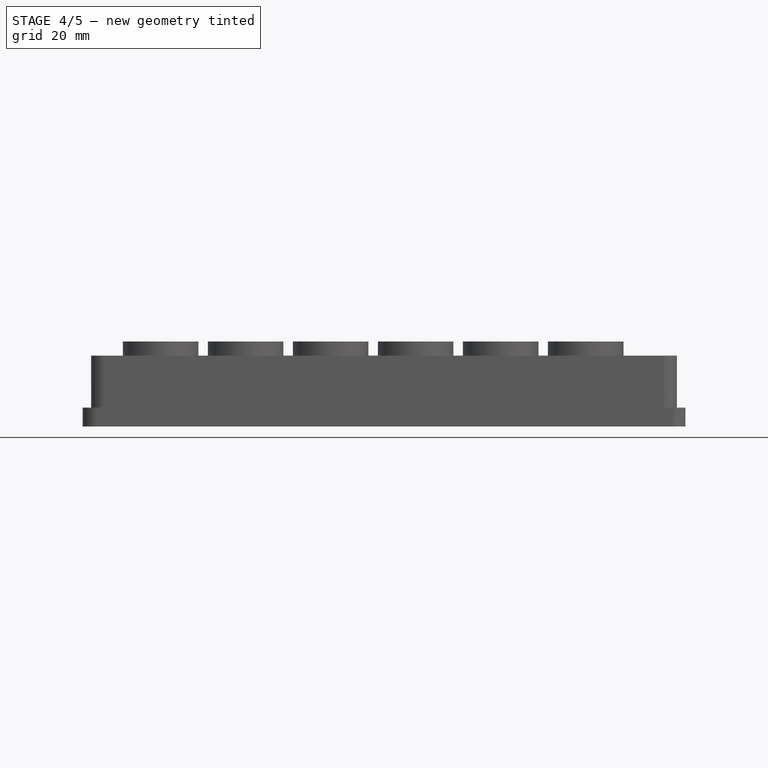
[diagram: stage 4 of 5 — front view after this stage's code; geometry added in this stage tinted green]
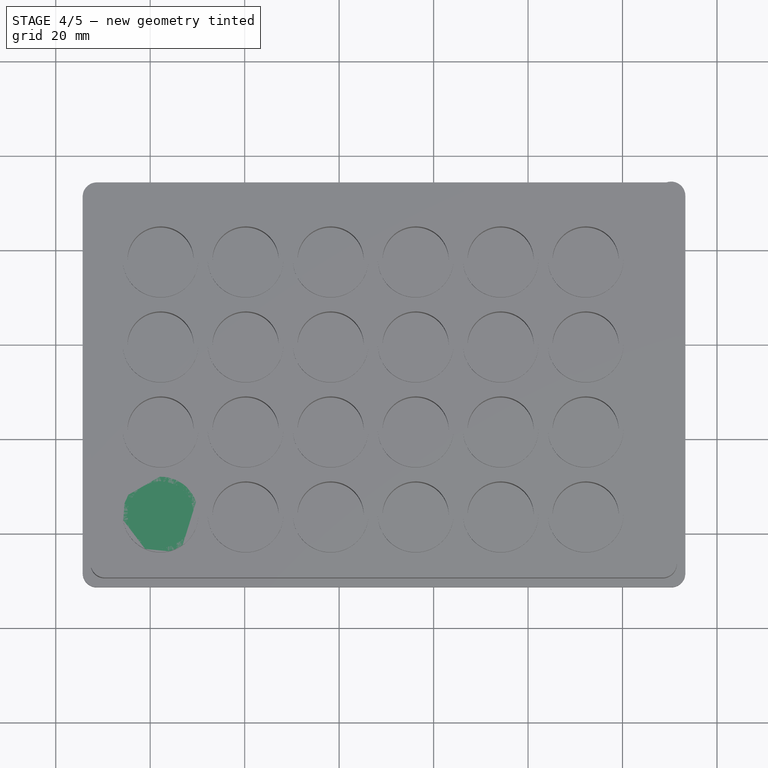
[diagram: stage 4 of 5 — top view after this stage's code; geometry added in this stage tinted green]
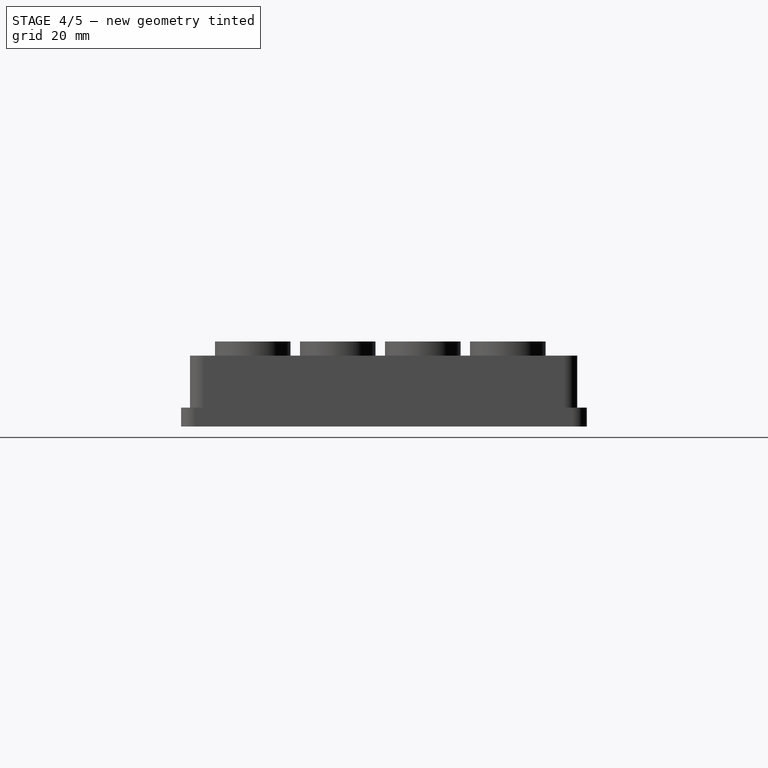
[diagram: stage 4 of 5 — right view after this stage's code; geometry added in this stage tinted green]
FEATURE [PartDesign::Body] Body013  label="Plate base down001"
  Group = -> [Sketch019,Pad002]
  Origin = -> Origin013
  Placement = pos=(0,0,-4) rot=(0,0,1;0rad)
  Tip = -> Pad002
FEATURE [Sketcher::SketchObject] Sketch020
  AttachmentOffset = pos=(0,0,4) rot=(0,0,1;0rad)
  FullyConstrained = false
  MapMode = 5
  Placement = pos=(0,0,4) rot=(0,0,1;0rad)
  Support = -> [XY_Plane014]
  sketch-geometry (25):
    g0: LineSegment StartX=0 StartY=0 StartZ=0 EndX=0 EndY=-9.5 EndZ=0
    g1: LineSegment StartX=0 StartY=0 StartZ=0 EndX=-12.5 EndY=0 EndZ=0
    g2: LineSegment StartX=0 StartY=-9.5 StartZ=0 EndX=-12.5 EndY=-9.5 EndZ=0
    g3: LineSegment StartX=-12.5 StartY=-9.5 StartZ=0 EndX=-12.5 EndY=0 EndZ=0
    g4: LineSegment StartX=-12.5 StartY=0 StartZ=0 EndX=-12.5 EndY=72.5 EndZ=0
    g5: LineSegment StartX=-12.5 StartY=72.5 StartZ=0 EndX=111.5 EndY=72.5 EndZ=0
    g6: LineSegment StartX=111.5 StartY=72.5 StartZ=0 EndX=111.5 EndY=-9.5 EndZ=0
    g7: LineSegment StartX=111.5 StartY=-9.5 StartZ=0 EndX=0 EndY=-9.5 EndZ=0
    g8: LineSegment StartX=0 StartY=0 StartZ=0 EndX=0 EndY=63 EndZ=0
    g9: LineSegment StartX=0 StartY=63 StartZ=0 EndX=99 EndY=63 EndZ=0
    g10: LineSegment StartX=99 StartY=63 StartZ=0 EndX=111.5 EndY=63 EndZ=0
    g11: LineSegment StartX=99 StartY=63 StartZ=0 EndX=99 EndY=72.5 EndZ=0
    g12: LineSegment StartX=-12.5 StartY=62.5 StartZ=0 EndX=-2.5 EndY=72.5 EndZ=0
    g13: LineSegment StartX=111.5 StartY=69.6097 StartZ=0 EndX=111.5 EndY=-6.5 EndZ=0
    g14: LineSegment StartX=108.5 StartY=-9.5 StartZ=0 EndX=-9.62701 EndY=-9.5 EndZ=0
    g15: ArcOfCircle CenterX=108.5 CenterY=69.6097 CenterZ=0 NormalX=0 NormalY=0 NormalZ=1 AngleXU=0 Radius=3 StartAngle=2.1e-15 EndAngle=1.2996
    g16: GeomPoint X=111.5 Y=72.5 Z=0
    g17: ArcOfCircle CenterX=108.5 CenterY=-6.5 CenterZ=0 NormalX=0 NormalY=0 NormalZ=1 AngleXU=0 Radius=3 StartAngle=4.71239 EndAngle=6.28319
    g18: GeomPoint X=111.5 Y=-9.5 Z=0
    g19: ArcOfCircle CenterX=-9.62701 CenterY=-6.5 CenterZ=0 NormalX=0 NormalY=0 NormalZ=1 AngleXU=0 Radius=3 StartAngle=3.43362 EndAngle=4.71239
    g20: GeomPoint X=-12.5 Y=-9.5 Z=0
    g21: GeomPoint X=-12.5 Y=72.5 Z=0
    g22: LineSegment StartX=-2.5 StartY=72.5 StartZ=0 EndX=-12.5 EndY=62.5 EndZ=0
    g23: LineSegment StartX=-2.5 StartY=72.5 StartZ=0 EndX=109.304 EndY=72.5 EndZ=0
    g24: LineSegment StartX=-12.5 StartY=-7.36368 StartZ=0 EndX=-12.5 EndY=62.5 EndZ=0
  constraints (61):
    c: Coincident(g0,g-1)
    c: PointOnObject(g0,g-2)
    c: Coincident(g1,g0)
    c: PointOnObject(g1,g-1)
    c: DistanceX(g1,g1) = 12.5
    c: DistanceY(g0,g0) = 9.5
    c: Coincident(g2,g0)
    c: Horizontal(g2)
    c: Coincident(g3,g2)
    c: Coincident(g3,g1)
    c: Vertical(g3)
    c: Coincident(g4,g1)
    c: Vertical(g4)
    c: Coincident(g5,g4)
    c: Horizontal(g5)
    c: Coincident(g6,g5)
    c: Vertical(g6)
    c: Coincident(g7,g6)
    c: Coincident(g7,g0)
    c: Horizontal(g7)
    c: Coincident(g8,g0)
    c: PointOnObject(g8,g-2)
    c: DistanceY(g8,g8) = 63
    c: Coincident(g9,g8)
    c: Horizontal(g9)
    c: DistanceX(g9,g9) = 99
    c: Coincident(g10,g9)
    c: PointOnObject(g10,g6)
    c: Horizontal(g10)
    c: Coincident(g11,g9)
    c: PointOnObject(g11,g5)
    c: Vertical(g11)
    c: Equal(g11,g0)
    c: Equal(g10,g1)
    c: PointOnObject(g12,g4)
    c: PointOnObject(g12,g5)
    c: Angle(g12,g5) = 2.35619
    c: DistanceX(g4,g12) = 10
    c: Coincident(g16,g5)
    c: Coincident(g18,g6)
    c: Coincident(g20,g2)
    c: PointOnObject(g16,g13)
    c: Tangent(g13,g15) = 1.5708
    c: PointOnObject(g18,g13)
    c: PointOnObject(g18,g14)
    c: Tangent(g13,g17) = 1.5708
    c: Tangent(g14,g17) = 1.5708
    c: PointOnObject(g20,g14)
    c: Tangent(g14,g19) = 1.5708
    c: Equal(g15,g17)
    c: Equal(g17,g19)
    c: Radius(g15) = 3
    c: Coincident(g21,g4)
    c: Coincident(g22,g12)
    c: Coincident(g22,g12)
    c: Coincident(g23,g22)
    c: Coincident(g23,g15)
    c: Horizontal(g23)
    c: Coincident(g24,g19)
    c: Coincident(g24,g22)
    c: Vertical(g24)
FEATURE [PartDesign::Pad] Pad003
  Direction = (0,0,1)
  Length = 11
  Length2 = 10
  Profile = -> Sketch020
  ReferenceAxis = -> Sketch020 [N_Axis]
  Type = 0
FEATURE [Part::Cylinder] Cylinder003  label="Well002"
  Angle = 360
  AttacherType = Attacher::AttachEngine3D
  FirstAngle = 0
  Height = 14
  Placement = pos=(2.2,3.8,0) rot=(0,0,1;0rad)
  Radius = 8
  SecondAngle = 0
FEATURE [Part::Cylinder] Cylinder004  label="Well003"
  Angle = 360
  AttacherType = Attacher::AttachEngine3D
  FirstAngle = 0
  Height = 14
  Placement = pos=(2.2,3.8,0) rot=(0,0,1;0rad)
  Radius = 7
  SecondAngle = 0
FEATURE [Part::FeaturePython] Array003  label="Array of wells003"  # Draft array (typed FeaturePython)
  AlwaysSyncPlacement = false
  Angle = 360
  ArrayType = 0
  Axis = (0,0,1)
  Base = -> Cylinder004
  Center = (0,0,0)
  Count = 24
  ExpandArray = false
  Fuse = false
  IntervalAxis = (0,0,0)
  IntervalX = (18,0,0)
  IntervalY = (0,18,0)
  IntervalZ = (0,0,100)
  NumberCircles = 3
  NumberPolar = 5
  NumberX = 6
  NumberY = 4
  NumberZ = 1
  PlacementList = <same value as first occurrence — deduplicated (x7 in doc)>
  RadialDistance = 50
  ScaleList = (24) [(1,1,1),(1,1,1),(1,1,1),(1,1,1),(1,1,1),(1,1,1),(1,1,1),(1,1,1),(1,1,1),(1,1,1),(1,1,1),(1,1,1),(1,1,1),(1,1,1),(1,1,1),(1,1,1),(1,1,1),(1,1,1),+6 more]
  Symmetry = 1
  TangentialDistance = 25
FEATURE [Part::Cut] Cut002
  Base = -> Body014
  Tool = -> Array003
FEATURE [Part::Compound] Compound001  label="96 well simple"
  Links = -> [Cut,Body]
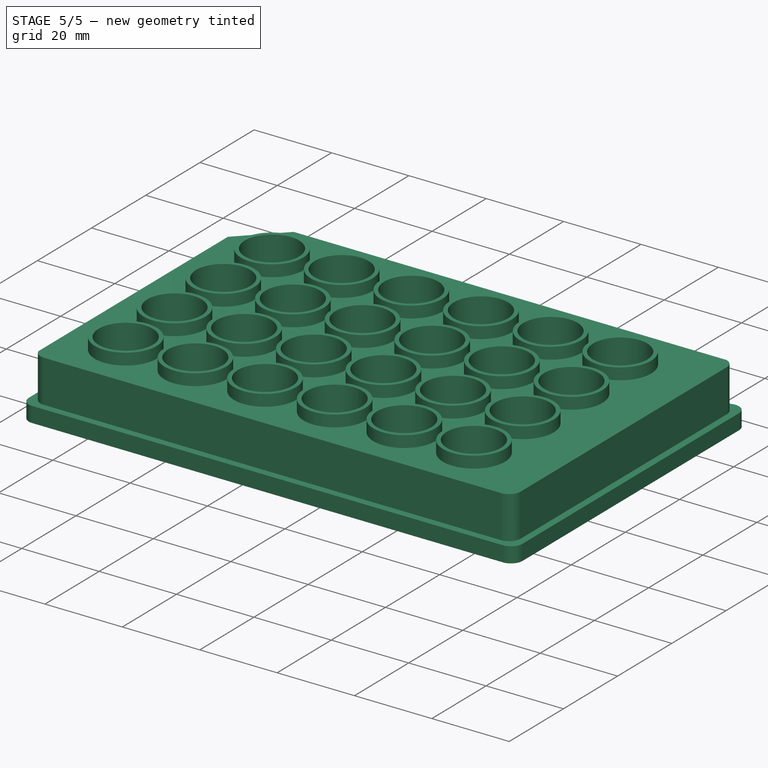
[diagram: stage 5 of 5 — iso view after this stage's code; geometry added in this stage tinted green]
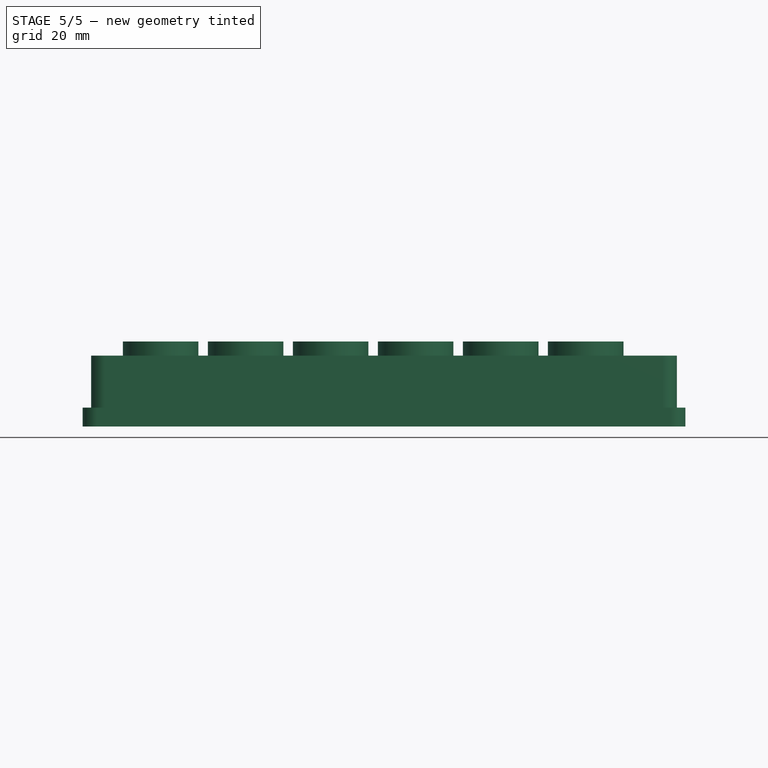
[diagram: stage 5 of 5 — front view after this stage's code; geometry added in this stage tinted green]
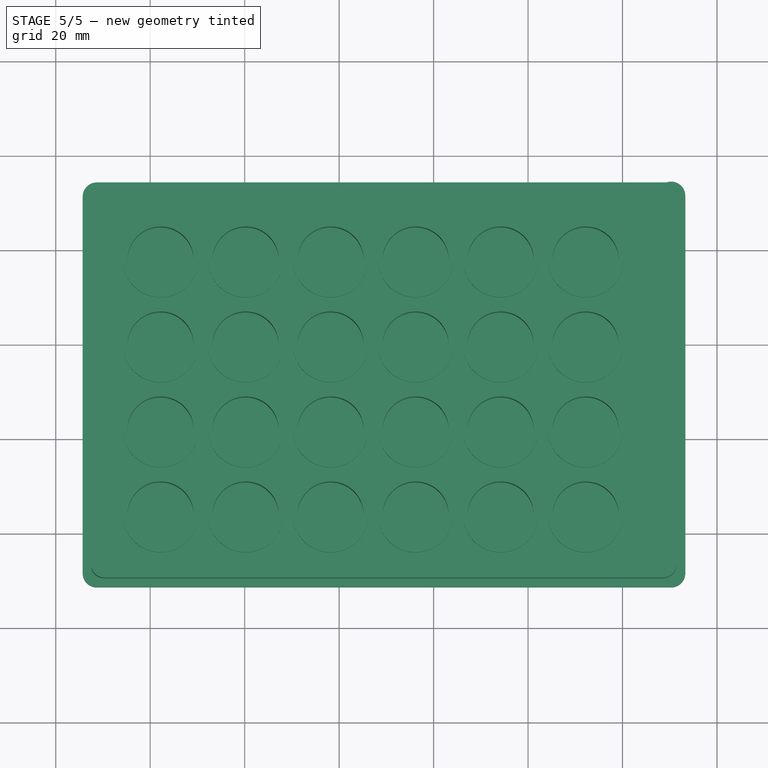
[diagram: stage 5 of 5 — top view after this stage's code; geometry added in this stage tinted green]
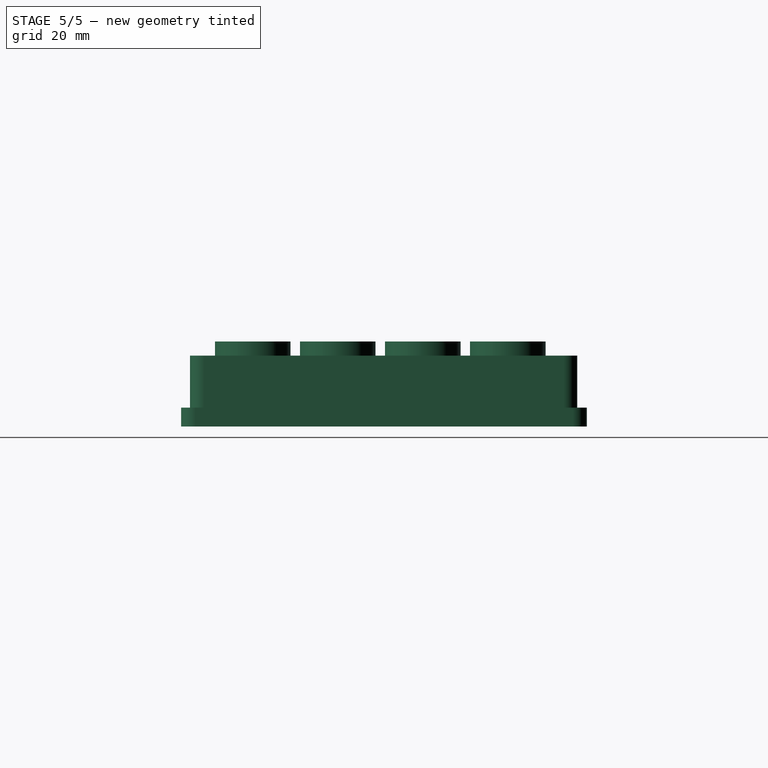
[diagram: stage 5 of 5 — right view after this stage's code; geometry added in this stage tinted green]
FEATURE [Sketcher::SketchObject] Sketch019
  FullyConstrained = false
  MapMode = 5
  Support = -> [XY_Plane013]
  sketch-geometry (25):
    g0: LineSegment StartX=0 StartY=0 StartZ=0 EndX=0 EndY=-11.36 EndZ=0
    g1: LineSegment StartX=0 StartY=0 StartZ=0 EndX=-14.3 EndY=0 EndZ=0
    g2: LineSegment StartX=0 StartY=-11.36 StartZ=0 EndX=-14.3 EndY=-11.36 EndZ=0
    g3: LineSegment StartX=-14.3 StartY=-11.36 StartZ=0 EndX=-14.3 EndY=0 EndZ=0
    g4: LineSegment StartX=-14.3 StartY=0 StartZ=0 EndX=-14.3 EndY=74.36 EndZ=0
    g5: LineSegment StartX=-14.3 StartY=74.36 StartZ=0 EndX=113.3 EndY=74.36 EndZ=0
    g6: LineSegment StartX=113.3 StartY=74.36 StartZ=0 EndX=113.3 EndY=-11.36 EndZ=0
    g7: LineSegment StartX=113.3 StartY=-11.36 StartZ=0 EndX=0 EndY=-11.36 EndZ=0
    g8: LineSegment StartX=0 StartY=0 StartZ=0 EndX=0 EndY=63 EndZ=0
    g9: LineSegment StartX=0 StartY=63 StartZ=0 EndX=99 EndY=63 EndZ=0
    g10: LineSegment StartX=99 StartY=63 StartZ=0 EndX=113.3 EndY=63 EndZ=0
    g11: LineSegment StartX=99 StartY=63 StartZ=0 EndX=99 EndY=74.36 EndZ=0
    g12: LineSegment StartX=-14.3 StartY=64.36 StartZ=0 EndX=-4.3 EndY=74.36 EndZ=0
    g13: LineSegment StartX=113.3 StartY=71.5303 StartZ=0 EndX=113.3 EndY=-8.36 EndZ=0
    g14: LineSegment StartX=110.3 StartY=-11.36 StartZ=0 EndX=-11.3 EndY=-11.36 EndZ=0
    g15: ArcOfCircle CenterX=110.3 CenterY=71.5303 CenterZ=0 NormalX=0 NormalY=0 NormalZ=1 AngleXU=0 Radius=3 StartAngle=-1.8e-15 EndAngle=1.90934
    g16: GeomPoint X=113.3 Y=74.36 Z=0
    g17: ArcOfCircle CenterX=110.3 CenterY=-8.36 CenterZ=0 NormalX=0 NormalY=0 NormalZ=1 AngleXU=0 Radius=3 StartAngle=4.71239 EndAngle=6.28319
    g18: GeomPoint X=113.3 Y=-11.36 Z=0
    g19: ArcOfCircle CenterX=-11.3 CenterY=-8.36 CenterZ=0 NormalX=0 NormalY=0 NormalZ=1 AngleXU=0 Radius=3 StartAngle=3.14159 EndAngle=4.71239
    g20: GeomPoint X=-14.3 Y=-11.36 Z=0
    g21: LineSegment StartX=109.304 StartY=74.36 StartZ=0 EndX=-11.3 EndY=74.36 EndZ=0
    g22: LineSegment StartX=-14.3 StartY=71.36 StartZ=0 EndX=-14.3 EndY=-8.36 EndZ=0
    g23: ArcOfCircle CenterX=-11.3 CenterY=71.36 CenterZ=0 NormalX=0 NormalY=0 NormalZ=1 AngleXU=0 Radius=3 StartAngle=1.5708 EndAngle=3.14159
    g24: GeomPoint X=-14.3 Y=74.36 Z=0
  constraints (62):
    c: Coincident(g0,g-1)
    c: PointOnObject(g0,g-2)
    c: Coincident(g1,g0)
    c: PointOnObject(g1,g-1)
    c: DistanceX(g1,g1) = 14.3
    c: DistanceY(g0,g0) = 11.36
    c: Coincident(g2,g0)
    c: Horizontal(g2)
    c: Coincident(g3,g2)
    c: Coincident(g3,g1)
    c: Vertical(g3)
    c: Coincident(g4,g1)
    c: Vertical(g4)
    c: Coincident(g5,g4)
    c: Horizontal(g5)
    c: Coincident(g6,g5)
    c: Vertical(g6)
    c: Coincident(g7,g6)
    c: Coincident(g7,g0)
    c: Horizontal(g7)
    c: Coincident(g8,g0)
    c: PointOnObject(g8,g-2)
    c: DistanceY(g8,g8) = 63
    c: Coincident(g9,g8)
    c: Horizontal(g9)
    c: DistanceX(g9,g9) = 99
    c: Coincident(g10,g9)
    c: PointOnObject(g10,g6)
    c: Horizontal(g10)
    c: Coincident(g11,g9)
    c: PointOnObject(g11,g5)
    c: Vertical(g11)
    c: Equal(g11,g0)
    c: Equal(g10,g1)
    c: PointOnObject(g12,g4)
    c: PointOnObject(g12,g5)
    c: Angle(g12,g5) = 2.35619
    c: DistanceX(g4,g12) = 10
    c: Coincident(g16,g5)
    c: Coincident(g18,g6)
    c: Coincident(g20,g2)
    c: PointOnObject(g16,g13)
    c: Tangent(g13,g15) = 1.5708
    c: PointOnObject(g18,g13)
    c: PointOnObject(g18,g14)
    c: Tangent(g13,g17) = 1.5708
    c: Tangent(g14,g17) = 1.5708
    c: PointOnObject(g20,g14)
    c: Tangent(g14,g19) = 1.5708
    c: Equal(g15,g17)
    c: Equal(g17,g19)
    c: Radius(g15) = 3
    c: Coincident(g21,g15)
    c: Coincident(g24,g4)
    c: Horizontal(g21)
    c: Vertical(g22)
    c: PointOnObject(g24,g22)
    c: PointOnObject(g24,g21)
    c: Tangent(g22,g23) = -1.5708
    c: Tangent(g21,g23) = -1.5708
    c: Equal(g23,g15)
    c: Tangent(g22,g19) = -1.5708
FEATURE [PartDesign::Pad] Pad002
  Direction = (0,0,1)
  Length = 4
  Length2 = 10
  Profile = -> Sketch019
  ReferenceAxis = -> Sketch019 [N_Axis]
  Type = 0
FEATURE [PartDesign::Body] Body014  label="Plate base middle001"
  Group = -> [Sketch020,Pad003]
  Origin = -> Origin014
  Placement = pos=(0,0,-4) rot=(0,0,1;0rad)
  Tip = -> Pad003
FEATURE [Part::Cylinder] Cylinder002  label="Well001"
  Angle = 360
  AttacherType = Attacher::AttachEngine3D
  FirstAngle = 0
  Height = 14
  Placement = pos=(2.2,3.8,0) rot=(0,0,1;0rad)
  Radius = 7
  SecondAngle = 0
FEATURE [Part::FeaturePython] Array001  label="Array of wells001"  # Draft array (typed FeaturePython)
  AlwaysSyncPlacement = false
  Angle = 360
  ArrayType = 0
  Axis = (0,0,1)
  Base = -> Cylinder002
  Center = (0,0,0)
  Count = 24
  ExpandArray = false
  Fuse = false
  IntervalAxis = (0,0,0)
  IntervalX = (18,0,0)
  IntervalY = (0,18,0)
  IntervalZ = (0,0,100)
  NumberCircles = 3
  NumberPolar = 5
  NumberX = 6
  NumberY = 4
  NumberZ = 1
  PlacementList = <same value as first occurrence — deduplicated (x7 in doc)>
  RadialDistance = 50
  ScaleList = (24) [(1,1,1),(1,1,1),(1,1,1),(1,1,1),(1,1,1),(1,1,1),(1,1,1),(1,1,1),(1,1,1),(1,1,1),(1,1,1),(1,1,1),(1,1,1),(1,1,1),(1,1,1),(1,1,1),(1,1,1),(1,1,1),+6 more]
  Symmetry = 1
  TangentialDistance = 25
FEATURE [Part::FeaturePython] Array002  label="Array of wells002"  # Draft array (typed FeaturePython)
  AlwaysSyncPlacement = false
  Angle = 360
  ArrayType = 0
  Axis = (0,0,1)
  Base = -> Cylinder003
  Center = (0,0,0)
  Count = 24
  ExpandArray = false
  Fuse = false
  IntervalAxis = (0,0,0)
  IntervalX = (18,0,0)
  IntervalY = (0,18,0)
  IntervalZ = (0,0,100)
  NumberCircles = 3
  NumberPolar = 5
  NumberX = 6
  NumberY = 4
  NumberZ = 1
  PlacementList = <same value as first occurrence — deduplicated (x7 in doc)>
  RadialDistance = 50
  ScaleList = (24) [(1,1,1),(1,1,1),(1,1,1),(1,1,1),(1,1,1),(1,1,1),(1,1,1),(1,1,1),(1,1,1),(1,1,1),(1,1,1),(1,1,1),(1,1,1),(1,1,1),(1,1,1),(1,1,1),(1,1,1),(1,1,1),+6 more]
  Symmetry = 1
  TangentialDistance = 25
FEATURE [Part::Cut] Cut001
  Base = -> Array002
  Tool = -> Array001
FEATURE [Part::Compound] Compound  label="96 well med"
  Links = -> [Body013,Cut001,Cut002]
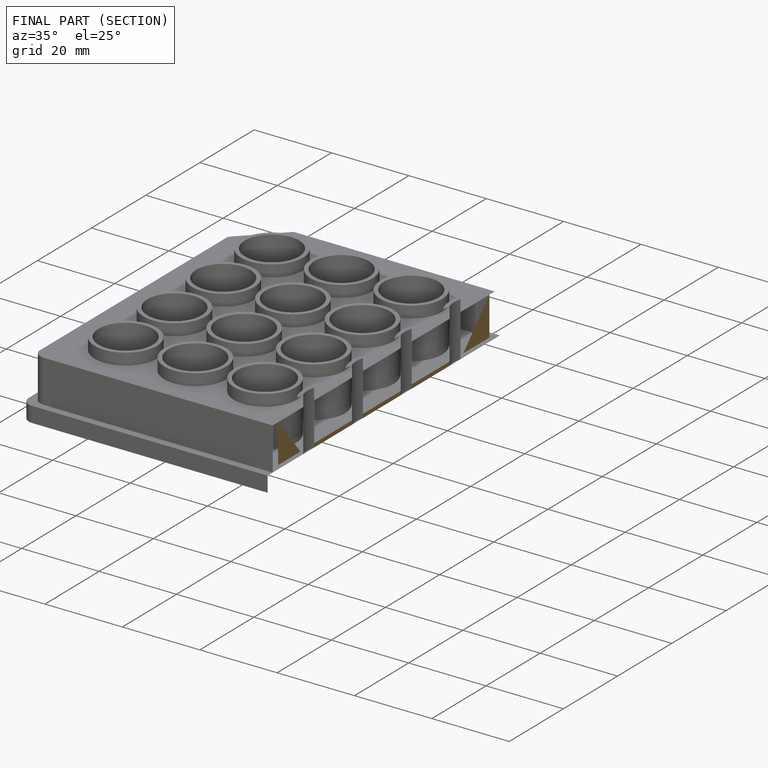
[diagram: finished part — half-section view (interior)]
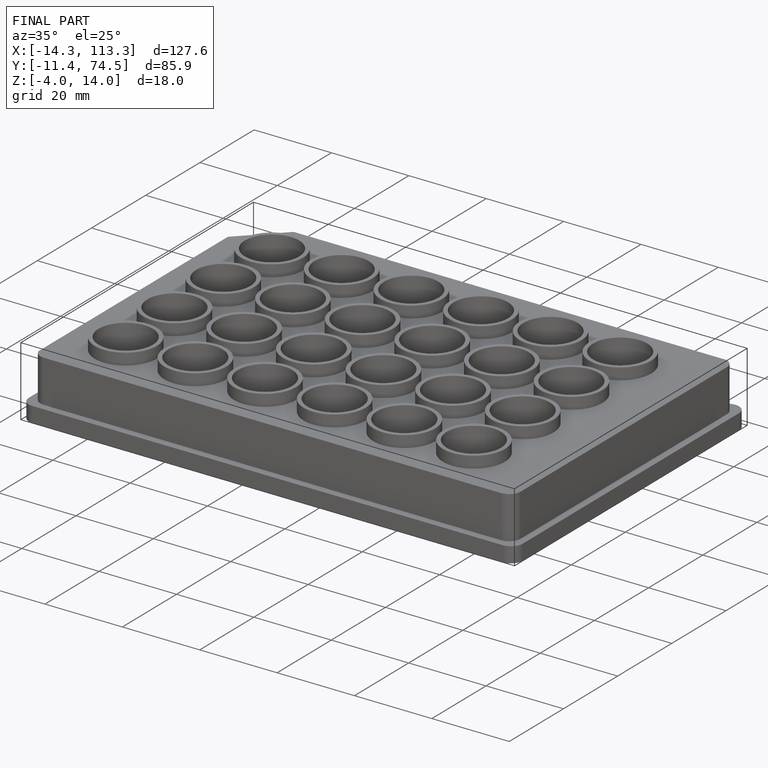
[diagram: finished part — iso view with bounding-box wireframe]
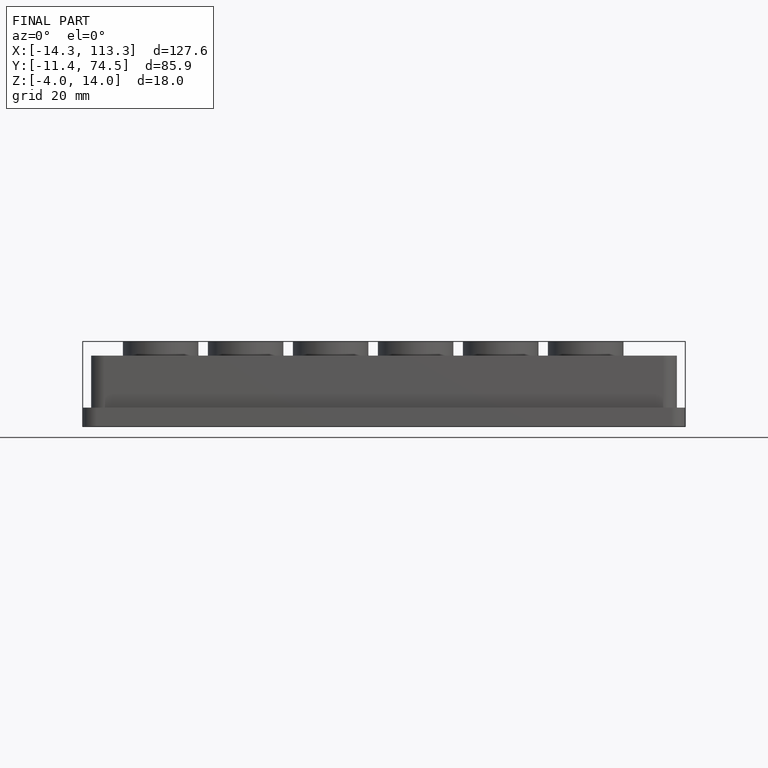
[diagram: finished part — front view with bounding-box wireframe]
